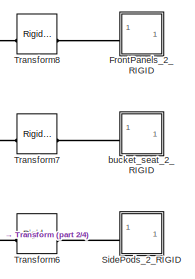
[diagram: root canvas - part 1/4, top center region]
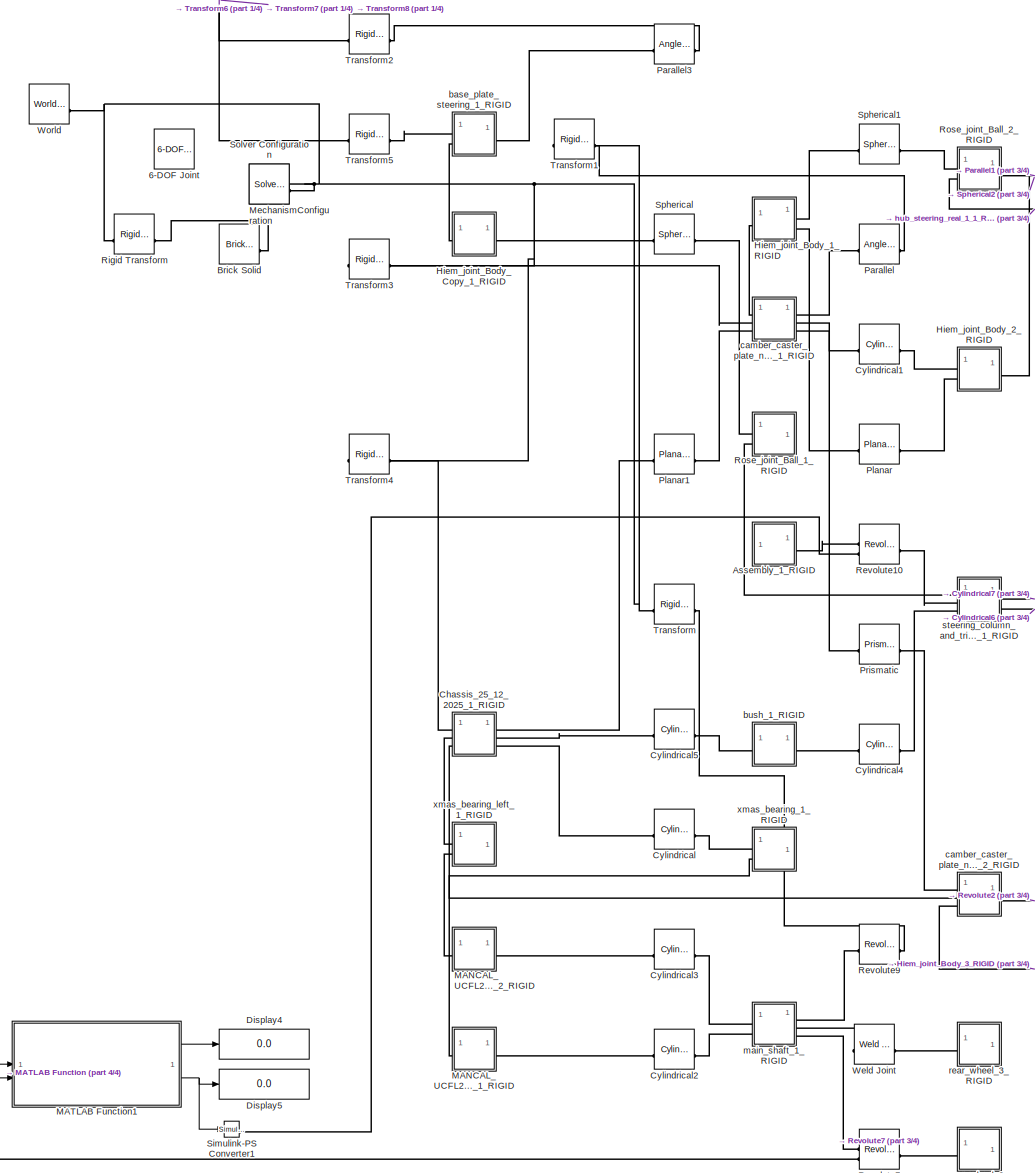
[diagram: root canvas - part 2/4, central region]
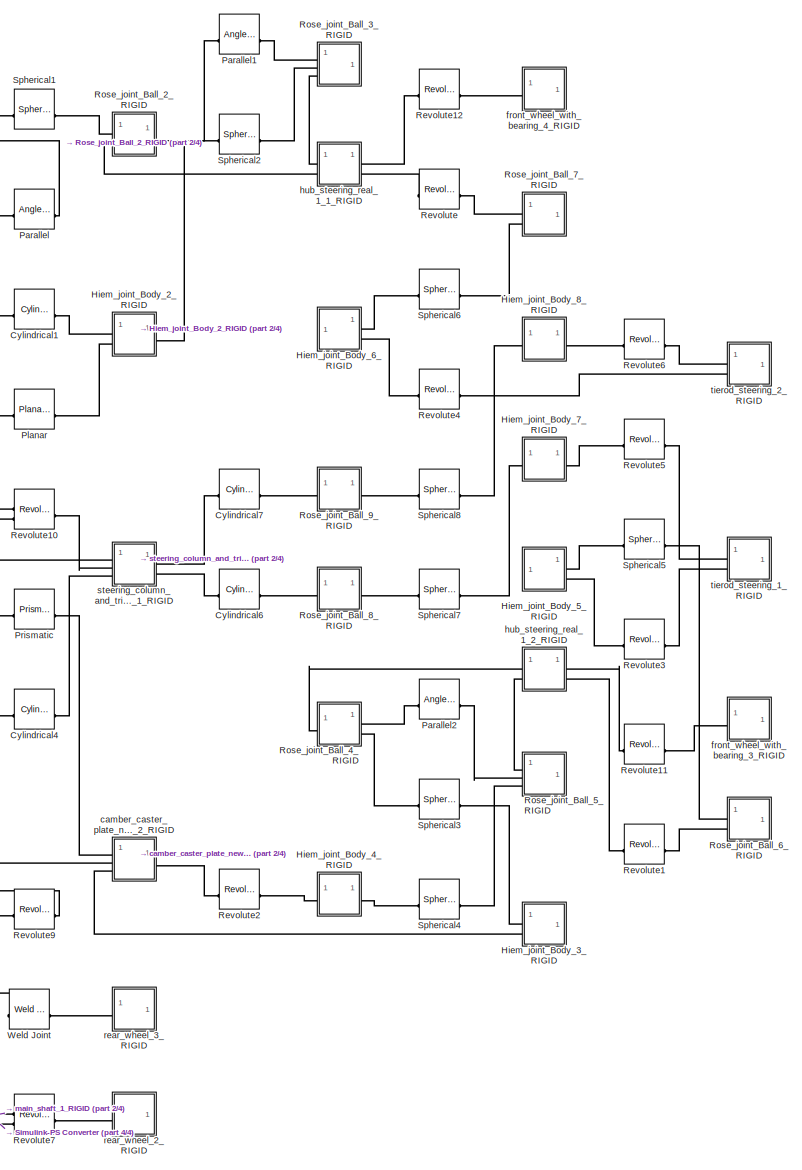
[diagram: root canvas - part 3/4, middle right region]
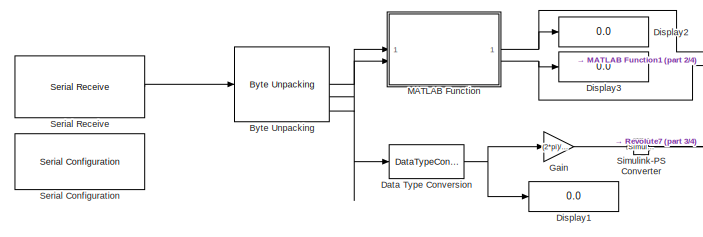
[diagram: root canvas - part 4/4, bottom left region]
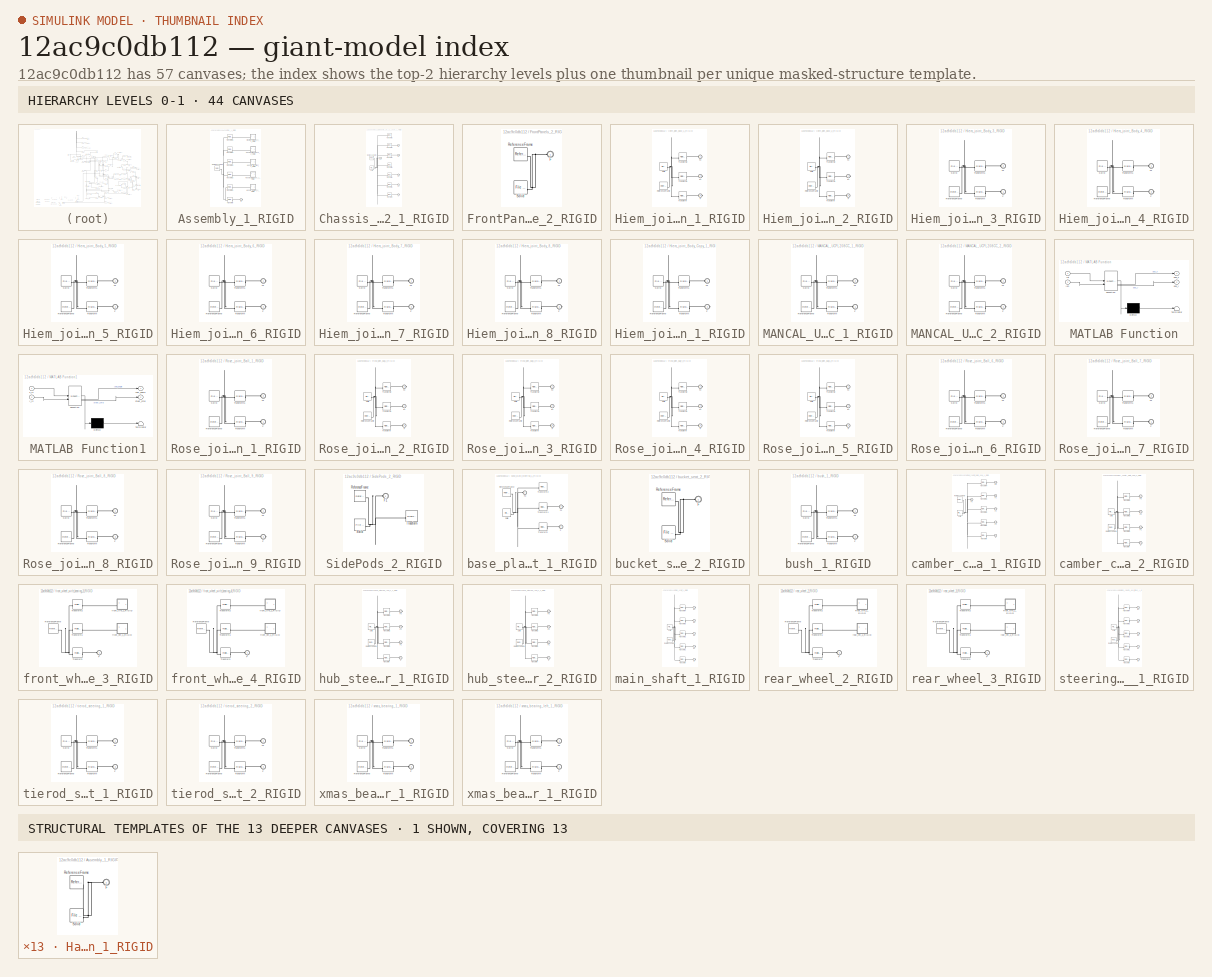
[diagram: thumbnail index - top-2 hierarchy levels (44 canvases) + 1 structural-template representatives of the remaining 13 canvases]
MODEL slx_12ac9c0db112
KIND model
CONFIG AbsTol = auto
CONFIG EnableMultiTasking = off
CONFIG FixedStep = auto
CONFIG MaxStep = auto
CONFIG MinStep = auto
CONFIG RelTol = 1e-3
CONFIG SampleTimeConstraint = Unconstrained
CONFIG SolverName = VariableStepAuto
CONFIG StartTime = 0.0
CONFIG StopTime = 10.0
WORKSPACE source: external: MATLAB File  (data not in archive)
BLOCK [Reference] 6-DOF Joint  REF=sm_lib/Joints/6-DOF Joint
  SourceBlock = sm_lib/Joints/6-DOF Joint
  SourceType = 6-DOF Joint
BLOCK [SubSystem] Assembly_1_RIGID
BLOCK [PMIOPort] Assembly_1_RIGID/F
  Side = Right
BLOCK [SubSystem] Assembly_1_RIGID/Handle_left_back_1_RIGID
BLOCK [PMIOPort] Assembly_1_RIGID/Handle_left_back_1_RIGID/F
  Side = Left
BLOCK [Reference] Assembly_1_RIGID/Handle_left_back_1_RIGID/ReferenceFrame  REF=sm_lib/Frames and
Transforms/Reference
Frame
  SourceBlock = sm_lib/Frames and\nTransforms/Reference\nFrame
  SourceType = Reference\nFrame
BLOCK [Reference] Assembly_1_RIGID/Handle_left_back_1_RIGID/Solid  REF=sm_lib/Body Elements/File Solid
  SourceBlock = sm_lib/Body Elements/File Solid
  SourceType = File Solid
BLOCK [SubSystem] Assembly_1_RIGID/Handle_left_front_1_RIGID
BLOCK [PMIOPort] Assembly_1_RIGID/Handle_left_front_1_RIGID/F
  Side = Left
BLOCK [Reference] Assembly_1_RIGID/Handle_left_front_1_RIGID/ReferenceFrame  REF=sm_lib/Frames and
Transforms/Reference
Frame
  SourceBlock = sm_lib/Frames and\nTransforms/Reference\nFrame
  SourceType = Reference\nFrame
BLOCK [Reference] Assembly_1_RIGID/Handle_left_front_1_RIGID/Solid  REF=sm_lib/Body Elements/File Solid
  SourceBlock = sm_lib/Body Elements/File Solid
  SourceType = File Solid
BLOCK [SubSystem] Assembly_1_RIGID/Handle_right_back_1_RIGID
BLOCK [PMIOPort] Assembly_1_RIGID/Handle_right_back_1_RIGID/F
  Side = Left
BLOCK [Reference] Assembly_1_RIGID/Handle_right_back_1_RIGID/ReferenceFrame  REF=sm_lib/Frames and
Transforms/Reference
Frame
  SourceBlock = sm_lib/Frames and\nTransforms/Reference\nFrame
  SourceType = Reference\nFrame
BLOCK [Reference] Assembly_1_RIGID/Handle_right_back_1_RIGID/Solid  REF=sm_lib/Body Elements/File Solid
  SourceBlock = sm_lib/Body Elements/File Solid
  SourceType = File Solid
BLOCK [SubSystem] Assembly_1_RIGID/Handle_right_front_1_RIGID
BLOCK [PMIOPort] Assembly_1_RIGID/Handle_right_front_1_RIGID/F
  Side = Left
BLOCK [Reference] Assembly_1_RIGID/Handle_right_front_1_RIGID/ReferenceFrame  REF=sm_lib/Frames and
Transforms/Reference
Frame
  SourceBlock = sm_lib/Frames and\nTransforms/Reference\nFrame
  SourceType = Reference\nFrame
BLOCK [Reference] Assembly_1_RIGID/Handle_right_front_1_RIGID/Solid  REF=sm_lib/Body Elements/File Solid
  SourceBlock = sm_lib/Body Elements/File Solid
  SourceType = File Solid
BLOCK [Reference] Assembly_1_RIGID/ReferenceFrame  REF=sm_lib/Frames and
Transforms/Reference
Frame
  SourceBlock = sm_lib/Frames and\nTransforms/Reference\nFrame
  SourceType = Reference\nFrame
BLOCK [SubSystem] Assembly_1_RIGID/Steering_Wheel_3_1_RIGID
BLOCK [PMIOPort] Assembly_1_RIGID/Steering_Wheel_3_1_RIGID/F
  Side = Left
BLOCK [Reference] Assembly_1_RIGID/Steering_Wheel_3_1_RIGID/ReferenceFrame  REF=sm_lib/Frames and
Transforms/Reference
Frame
  SourceBlock = sm_lib/Frames and\nTransforms/Reference\nFrame
  SourceType = Reference\nFrame
BLOCK [Reference] Assembly_1_RIGID/Steering_Wheel_3_1_RIGID/Solid  REF=sm_lib/Body Elements/File Solid
  SourceBlock = sm_lib/Body Elements/File Solid
  SourceType = File Solid
BLOCK [Reference] Assembly_1_RIGID/Transform  REF=sm_lib/Frames and
Transforms/Rigid
Transform
  SourceBlock = sm_lib/Frames and\nTransforms/Rigid\nTransform
  SourceType = Rigid\nTransform
BLOCK [Reference] Assembly_1_RIGID/Transform1  REF=sm_lib/Frames and
Transforms/Rigid
Transform
  SourceBlock = sm_lib/Frames and\nTransforms/Rigid\nTransform
  SourceType = Rigid\nTransform
BLOCK [Reference] Assembly_1_RIGID/Transform2  REF=sm_lib/Frames and
Transforms/Rigid
Transform
  SourceBlock = sm_lib/Frames and\nTransforms/Rigid\nTransform
  SourceType = Rigid\nTransform
BLOCK [Reference] Assembly_1_RIGID/Transform3  REF=sm_lib/Frames and
Transforms/Rigid
Transform
  SourceBlock = sm_lib/Frames and\nTransforms/Rigid\nTransform
  SourceType = Rigid\nTransform
BLOCK [Reference] Assembly_1_RIGID/Transform4  REF=sm_lib/Frames and
Transforms/Rigid
Transform
  SourceBlock = sm_lib/Frames and\nTransforms/Rigid\nTransform
  SourceType = Rigid\nTransform
BLOCK [Reference] Assembly_1_RIGID/Transform5  REF=sm_lib/Frames and
Transforms/Rigid
Transform
  SourceBlock = sm_lib/Frames and\nTransforms/Rigid\nTransform
  SourceType = Rigid\nTransform
BLOCK [Reference] Brick Solid  REF=sm_lib/Body Elements/Brick Solid
  SourceBlock = sm_lib/Body Elements/Brick Solid
  SourceType = Brick Solid
BLOCK [Reference] Byte Unpacking  REF=slrealtimeutilitieslib/Byte Unpacking
  SourceBlock = slrealtimeutilitieslib/Byte Unpacking
  SourceType = slreraltimebytepacking
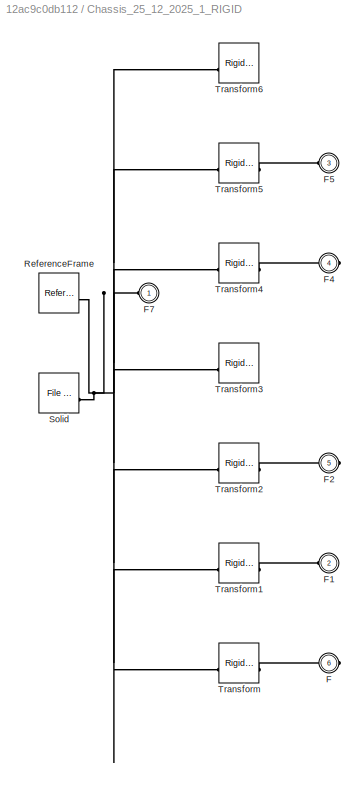
BLOCK [SubSystem] Chassis_25_12_2025_1_RIGID
BLOCK [PMIOPort] Chassis_25_12_2025_1_RIGID/F
  Port = 6
  Side = Right
BLOCK [PMIOPort] Chassis_25_12_2025_1_RIGID/F1
  Port = 2
  Side = Left
BLOCK [PMIOPort] Chassis_25_12_2025_1_RIGID/F2
  Port = 5
  Side = Right
BLOCK [PMIOPort] Chassis_25_12_2025_1_RIGID/F4
  Port = 4
  Side = Right
BLOCK [PMIOPort] Chassis_25_12_2025_1_RIGID/F5
  Port = 3
  Side = Left
BLOCK [PMIOPort] Chassis_25_12_2025_1_RIGID/F7
  Side = Left
BLOCK [Reference] Chassis_25_12_2025_1_RIGID/ReferenceFrame  REF=sm_lib/Frames and
Transforms/Reference
Frame
  SourceBlock = sm_lib/Frames and\nTransforms/Reference\nFrame
  SourceType = Reference\nFrame
BLOCK [Reference] Chassis_25_12_2025_1_RIGID/Solid  REF=sm_lib/Body Elements/File Solid
  SourceBlock = sm_lib/Body Elements/File Solid
  SourceType = File Solid
BLOCK [Reference] Chassis_25_12_2025_1_RIGID/Transform  REF=sm_lib/Frames and
Transforms/Rigid
Transform
  SourceBlock = sm_lib/Frames and\nTransforms/Rigid\nTransform
  SourceType = Rigid\nTransform
BLOCK [Reference] Chassis_25_12_2025_1_RIGID/Transform1  REF=sm_lib/Frames and
Transforms/Rigid
Transform
  SourceBlock = sm_lib/Frames and\nTransforms/Rigid\nTransform
  SourceType = Rigid\nTransform
BLOCK [Reference] Chassis_25_12_2025_1_RIGID/Transform2  REF=sm_lib/Frames and
Transforms/Rigid
Transform
  SourceBlock = sm_lib/Frames and\nTransforms/Rigid\nTransform
  SourceType = Rigid\nTransform
BLOCK [Reference] Chassis_25_12_2025_1_RIGID/Transform3  REF=sm_lib/Frames and
Transforms/Rigid
Transform
  SourceBlock = sm_lib/Frames and\nTransforms/Rigid\nTransform
  SourceType = Rigid\nTransform
BLOCK [Reference] Chassis_25_12_2025_1_RIGID/Transform4  REF=sm_lib/Frames and
Transforms/Rigid
Transform
  SourceBlock = sm_lib/Frames and\nTransforms/Rigid\nTransform
  SourceType = Rigid\nTransform
BLOCK [Reference] Chassis_25_12_2025_1_RIGID/Transform5  REF=sm_lib/Frames and
Transforms/Rigid
Transform
  SourceBlock = sm_lib/Frames and\nTransforms/Rigid\nTransform
  SourceType = Rigid\nTransform
BLOCK [Reference] Chassis_25_12_2025_1_RIGID/Transform6  REF=sm_lib/Frames and
Transforms/Rigid
Transform
  SourceBlock = sm_lib/Frames and\nTransforms/Rigid\nTransform
  SourceType = Rigid\nTransform
BLOCK [Reference] Cylindrical  REF=sm_lib/Joints/Cylindrical
Joint
  SourceBlock = sm_lib/Joints/Cylindrical\nJoint
  SourceType = Cylindrical\nJoint
BLOCK [Reference] Cylindrical1  REF=sm_lib/Joints/Cylindrical
Joint
  SourceBlock = sm_lib/Joints/Cylindrical\nJoint
  SourceType = Cylindrical\nJoint
BLOCK [Reference] Cylindrical2  REF=sm_lib/Joints/Cylindrical
Joint
  SourceBlock = sm_lib/Joints/Cylindrical\nJoint
  SourceType = Cylindrical\nJoint
BLOCK [Reference] Cylindrical3  REF=sm_lib/Joints/Cylindrical
Joint
  SourceBlock = sm_lib/Joints/Cylindrical\nJoint
  SourceType = Cylindrical\nJoint
BLOCK [Reference] Cylindrical4  REF=sm_lib/Joints/Cylindrical
Joint
  SourceBlock = sm_lib/Joints/Cylindrical\nJoint
  SourceType = Cylindrical\nJoint
BLOCK [Reference] Cylindrical5  REF=sm_lib/Joints/Cylindrical
Joint
  SourceBlock = sm_lib/Joints/Cylindrical\nJoint
  SourceType = Cylindrical\nJoint
BLOCK [Reference] Cylindrical6  REF=sm_lib/Joints/Cylindrical
Joint
  SourceBlock = sm_lib/Joints/Cylindrical\nJoint
  SourceType = Cylindrical\nJoint
BLOCK [Reference] Cylindrical7  REF=sm_lib/Joints/Cylindrical
Joint
  SourceBlock = sm_lib/Joints/Cylindrical\nJoint
  SourceType = Cylindrical\nJoint
BLOCK [DataTypeConversion] Data Type Conversion
  LockScale = on
  OutDataTypeStr = double
  RndMeth = Floor
  SaturateOnIntegerOverflow = off
BLOCK [Display] Display1
  Decimation = 1
BLOCK [Display] Display2
  Decimation = 1
BLOCK [Display] Display3
  Decimation = 1
BLOCK [Display] Display4
  Decimation = 1
BLOCK [Display] Display5
  Decimation = 1
BLOCK [SubSystem] FrontPanels_2_RIGID
BLOCK [PMIOPort] FrontPanels_2_RIGID/F
  Side = Left
BLOCK [Reference] FrontPanels_2_RIGID/ReferenceFrame  REF=sm_lib/Frames and
Transforms/Reference
Frame
  SourceBlock = sm_lib/Frames and\nTransforms/Reference\nFrame
  SourceType = Reference\nFrame
BLOCK [Reference] FrontPanels_2_RIGID/Solid  REF=sm_lib/Body Elements/File Solid
  SourceBlock = sm_lib/Body Elements/File Solid
  SourceType = File Solid
BLOCK [Gain] Gain
  Gain = (2*pi)/60
BLOCK [SubSystem] Hiem_joint_Body_1_RIGID
BLOCK [PMIOPort] Hiem_joint_Body_1_RIGID/F
  Port = 3
  Side = Right
BLOCK [PMIOPort] Hiem_joint_Body_1_RIGID/F1
  Port = 2
  Side = Right
BLOCK [PMIOPort] Hiem_joint_Body_1_RIGID/F2
  Side = Left
BLOCK [Reference] Hiem_joint_Body_1_RIGID/ReferenceFrame  REF=sm_lib/Frames and
Transforms/Reference
Frame
  SourceBlock = sm_lib/Frames and\nTransforms/Reference\nFrame
  SourceType = Reference\nFrame
BLOCK [Reference] Hiem_joint_Body_1_RIGID/Solid  REF=sm_lib/Body Elements/File Solid
  SourceBlock = sm_lib/Body Elements/File Solid
  SourceType = File Solid
BLOCK [Reference] Hiem_joint_Body_1_RIGID/Transform  REF=sm_lib/Frames and
Transforms/Rigid
Transform
  SourceBlock = sm_lib/Frames and\nTransforms/Rigid\nTransform
  SourceType = Rigid\nTransform
BLOCK [Reference] Hiem_joint_Body_1_RIGID/Transform1  REF=sm_lib/Frames and
Transforms/Rigid
Transform
  SourceBlock = sm_lib/Frames and\nTransforms/Rigid\nTransform
  SourceType = Rigid\nTransform
BLOCK [Reference] Hiem_joint_Body_1_RIGID/Transform2  REF=sm_lib/Frames and
Transforms/Rigid
Transform
  SourceBlock = sm_lib/Frames and\nTransforms/Rigid\nTransform
  SourceType = Rigid\nTransform
BLOCK [SubSystem] Hiem_joint_Body_2_RIGID
BLOCK [PMIOPort] Hiem_joint_Body_2_RIGID/F
  Port = 2
  Side = Left
BLOCK [PMIOPort] Hiem_joint_Body_2_RIGID/F1
  Port = 3
  Side = Right
BLOCK [PMIOPort] Hiem_joint_Body_2_RIGID/F2
  Side = Left
BLOCK [Reference] Hiem_joint_Body_2_RIGID/ReferenceFrame  REF=sm_lib/Frames and
Transforms/Reference
Frame
  SourceBlock = sm_lib/Frames and\nTransforms/Reference\nFrame
  SourceType = Reference\nFrame
BLOCK [Reference] Hiem_joint_Body_2_RIGID/Solid  REF=sm_lib/Body Elements/File Solid
  SourceBlock = sm_lib/Body Elements/File Solid
  SourceType = File Solid
BLOCK [Reference] Hiem_joint_Body_2_RIGID/Transform  REF=sm_lib/Frames and
Transforms/Rigid
Transform
  SourceBlock = sm_lib/Frames and\nTransforms/Rigid\nTransform
  SourceType = Rigid\nTransform
BLOCK [Reference] Hiem_joint_Body_2_RIGID/Transform1  REF=sm_lib/Frames and
Transforms/Rigid
Transform
  SourceBlock = sm_lib/Frames and\nTransforms/Rigid\nTransform
  SourceType = Rigid\nTransform
BLOCK [Reference] Hiem_joint_Body_2_RIGID/Transform2  REF=sm_lib/Frames and
Transforms/Rigid
Transform
  SourceBlock = sm_lib/Frames and\nTransforms/Rigid\nTransform
  SourceType = Rigid\nTransform
BLOCK [SubSystem] Hiem_joint_Body_3_RIGID
BLOCK [PMIOPort] Hiem_joint_Body_3_RIGID/F
  Side = Left
BLOCK [PMIOPort] Hiem_joint_Body_3_RIGID/F1
  Port = 2
  Side = Left
BLOCK [Reference] Hiem_joint_Body_3_RIGID/ReferenceFrame  REF=sm_lib/Frames and
Transforms/Reference
Frame
  SourceBlock = sm_lib/Frames and\nTransforms/Reference\nFrame
  SourceType = Reference\nFrame
BLOCK [Reference] Hiem_joint_Body_3_RIGID/Solid  REF=sm_lib/Body Elements/File Solid
  SourceBlock = sm_lib/Body Elements/File Solid
  SourceType = File Solid
BLOCK [Reference] Hiem_joint_Body_3_RIGID/Transform  REF=sm_lib/Frames and
Transforms/Rigid
Transform
  SourceBlock = sm_lib/Frames and\nTransforms/Rigid\nTransform
  SourceType = Rigid\nTransform
BLOCK [Reference] Hiem_joint_Body_3_RIGID/Transform1  REF=sm_lib/Frames and
Transforms/Rigid
Transform
  SourceBlock = sm_lib/Frames and\nTransforms/Rigid\nTransform
  SourceType = Rigid\nTransform
BLOCK [SubSystem] Hiem_joint_Body_4_RIGID
BLOCK [PMIOPort] Hiem_joint_Body_4_RIGID/F
  Port = 2
  Side = Right
BLOCK [PMIOPort] Hiem_joint_Body_4_RIGID/F1
  Side = Left
BLOCK [Reference] Hiem_joint_Body_4_RIGID/ReferenceFrame  REF=sm_lib/Frames and
Transforms/Reference
Frame
  SourceBlock = sm_lib/Frames and\nTransforms/Reference\nFrame
  SourceType = Reference\nFrame
BLOCK [Reference] Hiem_joint_Body_4_RIGID/Solid  REF=sm_lib/Body Elements/File Solid
  SourceBlock = sm_lib/Body Elements/File Solid
  SourceType = File Solid
BLOCK [Reference] Hiem_joint_Body_4_RIGID/Transform  REF=sm_lib/Frames and
Transforms/Rigid
Transform
  SourceBlock = sm_lib/Frames and\nTransforms/Rigid\nTransform
  SourceType = Rigid\nTransform
BLOCK [Reference] Hiem_joint_Body_4_RIGID/Transform1  REF=sm_lib/Frames and
Transforms/Rigid
Transform
  SourceBlock = sm_lib/Frames and\nTransforms/Rigid\nTransform
  SourceType = Rigid\nTransform
BLOCK [SubSystem] Hiem_joint_Body_5_RIGID
BLOCK [PMIOPort] Hiem_joint_Body_5_RIGID/F
  Port = 2
  Side = Right
BLOCK [PMIOPort] Hiem_joint_Body_5_RIGID/F1
  Side = Right
BLOCK [Reference] Hiem_joint_Body_5_RIGID/ReferenceFrame  REF=sm_lib/Frames and
Transforms/Reference
Frame
  SourceBlock = sm_lib/Frames and\nTransforms/Reference\nFrame
  SourceType = Reference\nFrame
BLOCK [Reference] Hiem_joint_Body_5_RIGID/Solid  REF=sm_lib/Body Elements/File Solid
  SourceBlock = sm_lib/Body Elements/File Solid
  SourceType = File Solid
BLOCK [Reference] Hiem_joint_Body_5_RIGID/Transform  REF=sm_lib/Frames and
Transforms/Rigid
Transform
  SourceBlock = sm_lib/Frames and\nTransforms/Rigid\nTransform
  SourceType = Rigid\nTransform
BLOCK [Reference] Hiem_joint_Body_5_RIGID/Transform1  REF=sm_lib/Frames and
Transforms/Rigid
Transform
  SourceBlock = sm_lib/Frames and\nTransforms/Rigid\nTransform
  SourceType = Rigid\nTransform
BLOCK [SubSystem] Hiem_joint_Body_6_RIGID
BLOCK [PMIOPort] Hiem_joint_Body_6_RIGID/F
  Port = 2
  Side = Right
BLOCK [PMIOPort] Hiem_joint_Body_6_RIGID/F1
  Side = Right
BLOCK [Reference] Hiem_joint_Body_6_RIGID/ReferenceFrame  REF=sm_lib/Frames and
Transforms/Reference
Frame
  SourceBlock = sm_lib/Frames and\nTransforms/Reference\nFrame
  SourceType = Reference\nFrame
BLOCK [Reference] Hiem_joint_Body_6_RIGID/Solid  REF=sm_lib/Body Elements/File Solid
  SourceBlock = sm_lib/Body Elements/File Solid
  SourceType = File Solid
BLOCK [Reference] Hiem_joint_Body_6_RIGID/Transform  REF=sm_lib/Frames and
Transforms/Rigid
Transform
  SourceBlock = sm_lib/Frames and\nTransforms/Rigid\nTransform
  SourceType = Rigid\nTransform
BLOCK [Reference] Hiem_joint_Body_6_RIGID/Transform1  REF=sm_lib/Frames and
Transforms/Rigid
Transform
  SourceBlock = sm_lib/Frames and\nTransforms/Rigid\nTransform
  SourceType = Rigid\nTransform
BLOCK [SubSystem] Hiem_joint_Body_7_RIGID
BLOCK [PMIOPort] Hiem_joint_Body_7_RIGID/F
  Port = 2
  Side = Right
BLOCK [PMIOPort] Hiem_joint_Body_7_RIGID/F1
  Side = Left
BLOCK [Reference] Hiem_joint_Body_7_RIGID/ReferenceFrame  REF=sm_lib/Frames and
Transforms/Reference
Frame
  SourceBlock = sm_lib/Frames and\nTransforms/Reference\nFrame
  SourceType = Reference\nFrame
BLOCK [Reference] Hiem_joint_Body_7_RIGID/Solid  REF=sm_lib/Body Elements/File Solid
  SourceBlock = sm_lib/Body Elements/File Solid
  SourceType = File Solid
BLOCK [Reference] Hiem_joint_Body_7_RIGID/Transform  REF=sm_lib/Frames and
Transforms/Rigid
Transform
  SourceBlock = sm_lib/Frames and\nTransforms/Rigid\nTransform
  SourceType = Rigid\nTransform
BLOCK [Reference] Hiem_joint_Body_7_RIGID/Transform1  REF=sm_lib/Frames and
Transforms/Rigid
Transform
  SourceBlock = sm_lib/Frames and\nTransforms/Rigid\nTransform
  SourceType = Rigid\nTransform
BLOCK [SubSystem] Hiem_joint_Body_8_RIGID
BLOCK [PMIOPort] Hiem_joint_Body_8_RIGID/F
  Port = 2
  Side = Right
BLOCK [PMIOPort] Hiem_joint_Body_8_RIGID/F1
  Side = Left
BLOCK [Reference] Hiem_joint_Body_8_RIGID/ReferenceFrame  REF=sm_lib/Frames and
Transforms/Reference
Frame
  SourceBlock = sm_lib/Frames and\nTransforms/Reference\nFrame
  SourceType = Reference\nFrame
BLOCK [Reference] Hiem_joint_Body_8_RIGID/Solid  REF=sm_lib/Body Elements/File Solid
  SourceBlock = sm_lib/Body Elements/File Solid
  SourceType = File Solid
BLOCK [Reference] Hiem_joint_Body_8_RIGID/Transform  REF=sm_lib/Frames and
Transforms/Rigid
Transform
  SourceBlock = sm_lib/Frames and\nTransforms/Rigid\nTransform
  SourceType = Rigid\nTransform
BLOCK [Reference] Hiem_joint_Body_8_RIGID/Transform1  REF=sm_lib/Frames and
Transforms/Rigid
Transform
  SourceBlock = sm_lib/Frames and\nTransforms/Rigid\nTransform
  SourceType = Rigid\nTransform
BLOCK [SubSystem] Hiem_joint_Body_Copy_1_RIGID
BLOCK [PMIOPort] Hiem_joint_Body_Copy_1_RIGID/F
  Port = 2
  Side = Right
BLOCK [PMIOPort] Hiem_joint_Body_Copy_1_RIGID/F1
  Side = Left
BLOCK [Reference] Hiem_joint_Body_Copy_1_RIGID/ReferenceFrame  REF=sm_lib/Frames and
Transforms/Reference
Frame
  SourceBlock = sm_lib/Frames and\nTransforms/Reference\nFrame
  SourceType = Reference\nFrame
BLOCK [Reference] Hiem_joint_Body_Copy_1_RIGID/Solid  REF=sm_lib/Body Elements/File Solid
  SourceBlock = sm_lib/Body Elements/File Solid
  SourceType = File Solid
BLOCK [Reference] Hiem_joint_Body_Copy_1_RIGID/Transform  REF=sm_lib/Frames and
Transforms/Rigid
Transform
  SourceBlock = sm_lib/Frames and\nTransforms/Rigid\nTransform
  SourceType = Rigid\nTransform
BLOCK [Reference] Hiem_joint_Body_Copy_1_RIGID/Transform1  REF=sm_lib/Frames and
Transforms/Rigid
Transform
  SourceBlock = sm_lib/Frames and\nTransforms/Rigid\nTransform
  SourceType = Rigid\nTransform
BLOCK [SubSystem] MANCAL_UCFL208CC_1_RIGID
BLOCK [PMIOPort] MANCAL_UCFL208CC_1_RIGID/F
  Side = Left
BLOCK [PMIOPort] MANCAL_UCFL208CC_1_RIGID/F1
  Port = 2
  Side = Right
BLOCK [Reference] MANCAL_UCFL208CC_1_RIGID/ReferenceFrame  REF=sm_lib/Frames and
Transforms/Reference
Frame
  SourceBlock = sm_lib/Frames and\nTransforms/Reference\nFrame
  SourceType = Reference\nFrame
BLOCK [Reference] MANCAL_UCFL208CC_1_RIGID/Solid  REF=sm_lib/Body Elements/File Solid
  SourceBlock = sm_lib/Body Elements/File Solid
  SourceType = File Solid
BLOCK [Reference] MANCAL_UCFL208CC_1_RIGID/Transform  REF=sm_lib/Frames and
Transforms/Rigid
Transform
  SourceBlock = sm_lib/Frames and\nTransforms/Rigid\nTransform
  SourceType = Rigid\nTransform
BLOCK [Reference] MANCAL_UCFL208CC_1_RIGID/Transform1  REF=sm_lib/Frames and
Transforms/Rigid
Transform
  SourceBlock = sm_lib/Frames and\nTransforms/Rigid\nTransform
  SourceType = Rigid\nTransform
BLOCK [SubSystem] MANCAL_UCFL208CC_2_RIGID
BLOCK [PMIOPort] MANCAL_UCFL208CC_2_RIGID/F
  Port = 2
  Side = Right
BLOCK [PMIOPort] MANCAL_UCFL208CC_2_RIGID/F1
  Side = Left
BLOCK [Reference] MANCAL_UCFL208CC_2_RIGID/ReferenceFrame  REF=sm_lib/Frames and
Transforms/Reference
Frame
  SourceBlock = sm_lib/Frames and\nTransforms/Reference\nFrame
  SourceType = Reference\nFrame
BLOCK [Reference] MANCAL_UCFL208CC_2_RIGID/Solid  REF=sm_lib/Body Elements/File Solid
  SourceBlock = sm_lib/Body Elements/File Solid
  SourceType = File Solid
BLOCK [Reference] MANCAL_UCFL208CC_2_RIGID/Transform  REF=sm_lib/Frames and
Transforms/Rigid
Transform
  SourceBlock = sm_lib/Frames and\nTransforms/Rigid\nTransform
  SourceType = Rigid\nTransform
BLOCK [Reference] MANCAL_UCFL208CC_2_RIGID/Transform1  REF=sm_lib/Frames and
Transforms/Rigid
Transform
  SourceBlock = sm_lib/Frames and\nTransforms/Rigid\nTransform
  SourceType = Rigid\nTransform
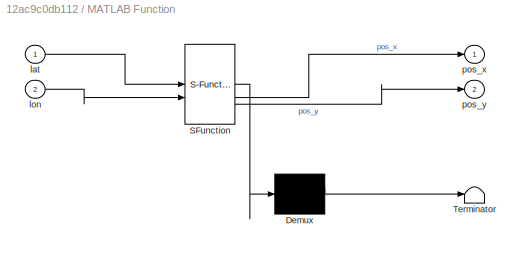
BLOCK [SubSystem] MATLAB Function
  ErrorFcn = Stateflow.Translate.translate
  PermitHierarchicalResolution = ExplicitOnly
  SFBlockType = MATLAB Function
  TreatAsAtomicUnit = on
BLOCK [Demux] MATLAB Function/ Demux 
  Outputs = 1
BLOCK [S-Function] MATLAB Function/ SFunction 
  EnableBusSupport = off
  FunctionName = sf_sfun
  PortCounts = [2 3]
  SFcnIsStateOwnerBlock = off
  SFunctionDeploymentMode = off
  Tag = Stateflow S-Function 2
BLOCK [Terminator] MATLAB Function/ Terminator 
BLOCK [Inport] MATLAB Function/lat
BLOCK [Inport] MATLAB Function/lon
  Port = 2
BLOCK [Outport] MATLAB Function/pos_x
BLOCK [Outport] MATLAB Function/pos_y
  Port = 2
BLOCK [SubSystem] MATLAB Function1
  ErrorFcn = Stateflow.Translate.translate
  PermitHierarchicalResolution = ExplicitOnly
  SFBlockType = MATLAB Function
  TreatAsAtomicUnit = on
BLOCK [Demux] MATLAB Function1/ Demux 
  Outputs = 1
BLOCK [S-Function] MATLAB Function1/ SFunction 
  EnableBusSupport = off
  FunctionName = sf_sfun
  PortCounts = [2 3]
  SFcnIsStateOwnerBlock = off
  SFunctionDeploymentMode = off
  Tag = Stateflow S-Function 1
BLOCK [Terminator] MATLAB Function1/ Terminator 
BLOCK [Outport] MATLAB Function1/steer_cmd
  Port = 2
BLOCK [Inport] MATLAB Function1/x_in
BLOCK [Inport] MATLAB Function1/y_in
  Port = 2
BLOCK [Outport] MATLAB Function1/yaw_angle
BLOCK [Reference] MechanismConfiguration  REF=sm_lib/Utilities/Mechanism
Configuration
  SourceBlock = sm_lib/Utilities/Mechanism\nConfiguration
  SourceType = Mechanism\nConfiguration
BLOCK [Reference] Parallel  REF=sm_lib/Constraints/Angle
Constraint
  Commented = on
  SourceBlock = sm_lib/Constraints/Angle\nConstraint
  SourceType = Angle\nConstraint
BLOCK [Reference] Parallel1  REF=sm_lib/Constraints/Angle
Constraint
  Commented = on
  SourceBlock = sm_lib/Constraints/Angle\nConstraint
  SourceType = Angle\nConstraint
BLOCK [Reference] Parallel2  REF=sm_lib/Constraints/Angle
Constraint
  Commented = on
  SourceBlock = sm_lib/Constraints/Angle\nConstraint
  SourceType = Angle\nConstraint
BLOCK [Reference] Parallel3  REF=sm_lib/Constraints/Angle
Constraint
  Commented = on
  SourceBlock = sm_lib/Constraints/Angle\nConstraint
  SourceType = Angle\nConstraint
BLOCK [Reference] Planar  REF=sm_lib/Joints/Planar Joint
  SourceBlock = sm_lib/Joints/Planar Joint
  SourceType = Planar Joint
BLOCK [Reference] Planar1  REF=sm_lib/Joints/Planar Joint
  Commented = on
  SourceBlock = sm_lib/Joints/Planar Joint
  SourceType = Planar Joint
BLOCK [Reference] Prismatic  REF=sm_lib/Joints/Prismatic
Joint
  Commented = on
  SourceBlock = sm_lib/Joints/Prismatic\nJoint
  SourceType = Prismatic\nJoint
BLOCK [Reference] Revolute  REF=sm_lib/Joints/Revolute Joint
  SourceBlock = sm_lib/Joints/Revolute Joint
  SourceType = Revolute Joint
BLOCK [Reference] Revolute1  REF=sm_lib/Joints/Revolute Joint
  SourceBlock = sm_lib/Joints/Revolute Joint
  SourceType = Revolute Joint
BLOCK [Reference] Revolute10  REF=sm_lib/Joints/Revolute Joint
  SourceBlock = sm_lib/Joints/Revolute Joint
  SourceType = Revolute Joint
BLOCK [Reference] Revolute11  REF=sm_lib/Joints/Revolute Joint
  SourceBlock = sm_lib/Joints/Revolute Joint
  SourceType = Revolute Joint
BLOCK [Reference] Revolute12  REF=sm_lib/Joints/Revolute Joint
  SourceBlock = sm_lib/Joints/Revolute Joint
  SourceType = Revolute Joint
BLOCK [Reference] Revolute2  REF=sm_lib/Joints/Revolute Joint
  SourceBlock = sm_lib/Joints/Revolute Joint
  SourceType = Revolute Joint
BLOCK [Reference] Revolute3  REF=sm_lib/Joints/Revolute Joint
  SourceBlock = sm_lib/Joints/Revolute Joint
  SourceType = Revolute Joint
BLOCK [Reference] Revolute4  REF=sm_lib/Joints/Revolute Joint
  SourceBlock = sm_lib/Joints/Revolute Joint
  SourceType = Revolute Joint
BLOCK [Reference] Revolute5  REF=sm_lib/Joints/Revolute Joint
  SourceBlock = sm_lib/Joints/Revolute Joint
  SourceType = Revolute Joint
BLOCK [Reference] Revolute6  REF=sm_lib/Joints/Revolute Joint
  SourceBlock = sm_lib/Joints/Revolute Joint
  SourceType = Revolute Joint
BLOCK [Reference] Revolute7  REF=sm_lib/Joints/Revolute Joint
  SourceBlock = sm_lib/Joints/Revolute Joint
  SourceType = Revolute Joint
BLOCK [Reference] Revolute9  REF=sm_lib/Joints/Revolute Joint
  SourceBlock = sm_lib/Joints/Revolute Joint
  SourceType = Revolute Joint
BLOCK [Reference] Rigid Transform  REF=sm_lib/Frames and
Transforms/Rigid
Transform
  SourceBlock = sm_lib/Frames and\nTransforms/Rigid\nTransform
  SourceType = Rigid\nTransform
BLOCK [SubSystem] Rose_joint_Ball_1_RIGID
BLOCK [PMIOPort] Rose_joint_Ball_1_RIGID/F
  Side = Left
BLOCK [PMIOPort] Rose_joint_Ball_1_RIGID/F1
  Port = 2
  Side = Left
BLOCK [Reference] Rose_joint_Ball_1_RIGID/ReferenceFrame  REF=sm_lib/Frames and
Transforms/Reference
Frame
  SourceBlock = sm_lib/Frames and\nTransforms/Reference\nFrame
  SourceType = Reference\nFrame
BLOCK [Reference] Rose_joint_Ball_1_RIGID/Solid  REF=sm_lib/Body Elements/File Solid
  SourceBlock = sm_lib/Body Elements/File Solid
  SourceType = File Solid
BLOCK [Reference] Rose_joint_Ball_1_RIGID/Transform  REF=sm_lib/Frames and
Transforms/Rigid
Transform
  SourceBlock = sm_lib/Frames and\nTransforms/Rigid\nTransform
  SourceType = Rigid\nTransform
BLOCK [Reference] Rose_joint_Ball_1_RIGID/Transform1  REF=sm_lib/Frames and
Transforms/Rigid
Transform
  SourceBlock = sm_lib/Frames and\nTransforms/Rigid\nTransform
  SourceType = Rigid\nTransform
BLOCK [SubSystem] Rose_joint_Ball_2_RIGID
BLOCK [PMIOPort] Rose_joint_Ball_2_RIGID/F
  Port = 2
  Side = Left
BLOCK [PMIOPort] Rose_joint_Ball_2_RIGID/F1
  Side = Left
BLOCK [PMIOPort] Rose_joint_Ball_2_RIGID/F2
  Port = 3
  Side = Right
BLOCK [Reference] Rose_joint_Ball_2_RIGID/ReferenceFrame  REF=sm_lib/Frames and
Transforms/Reference
Frame
  SourceBlock = sm_lib/Frames and\nTransforms/Reference\nFrame
  SourceType = Reference\nFrame
BLOCK [Reference] Rose_joint_Ball_2_RIGID/Solid  REF=sm_lib/Body Elements/File Solid
  SourceBlock = sm_lib/Body Elements/File Solid
  SourceType = File Solid
BLOCK [Reference] Rose_joint_Ball_2_RIGID/Transform  REF=sm_lib/Frames and
Transforms/Rigid
Transform
  SourceBlock = sm_lib/Frames and\nTransforms/Rigid\nTransform
  SourceType = Rigid\nTransform
BLOCK [Reference] Rose_joint_Ball_2_RIGID/Transform1  REF=sm_lib/Frames and
Transforms/Rigid
Transform
  SourceBlock = sm_lib/Frames and\nTransforms/Rigid\nTransform
  SourceType = Rigid\nTransform
BLOCK [Reference] Rose_joint_Ball_2_RIGID/Transform2  REF=sm_lib/Frames and
Transforms/Rigid
Transform
  SourceBlock = sm_lib/Frames and\nTransforms/Rigid\nTransform
  SourceType = Rigid\nTransform
BLOCK [SubSystem] Rose_joint_Ball_3_RIGID
BLOCK [PMIOPort] Rose_joint_Ball_3_RIGID/F
  Port = 3
  Side = Left
BLOCK [PMIOPort] Rose_joint_Ball_3_RIGID/F1
  Port = 2
  Side = Left
BLOCK [PMIOPort] Rose_joint_Ball_3_RIGID/F2
  Side = Left
BLOCK [Reference] Rose_joint_Ball_3_RIGID/ReferenceFrame  REF=sm_lib/Frames and
Transforms/Reference
Frame
  SourceBlock = sm_lib/Frames and\nTransforms/Reference\nFrame
  SourceType = Reference\nFrame
BLOCK [Reference] Rose_joint_Ball_3_RIGID/Solid  REF=sm_lib/Body Elements/File Solid
  SourceBlock = sm_lib/Body Elements/File Solid
  SourceType = File Solid
BLOCK [Reference] Rose_joint_Ball_3_RIGID/Transform  REF=sm_lib/Frames and
Transforms/Rigid
Transform
  SourceBlock = sm_lib/Frames and\nTransforms/Rigid\nTransform
  SourceType = Rigid\nTransform
BLOCK [Reference] Rose_joint_Ball_3_RIGID/Transform1  REF=sm_lib/Frames and
Transforms/Rigid
Transform
  SourceBlock = sm_lib/Frames and\nTransforms/Rigid\nTransform
  SourceType = Rigid\nTransform
BLOCK [Reference] Rose_joint_Ball_3_RIGID/Transform2  REF=sm_lib/Frames and
Transforms/Rigid
Transform
  SourceBlock = sm_lib/Frames and\nTransforms/Rigid\nTransform
  SourceType = Rigid\nTransform
BLOCK [SubSystem] Rose_joint_Ball_4_RIGID
BLOCK [PMIOPort] Rose_joint_Ball_4_RIGID/F
  Side = Left
BLOCK [PMIOPort] Rose_joint_Ball_4_RIGID/F1
  Port = 3
  Side = Right
BLOCK [PMIOPort] Rose_joint_Ball_4_RIGID/F2
  Port = 2
  Side = Right
BLOCK [Reference] Rose_joint_Ball_4_RIGID/ReferenceFrame  REF=sm_lib/Frames and
Transforms/Reference
Frame
  SourceBlock = sm_lib/Frames and\nTransforms/Reference\nFrame
  SourceType = Reference\nFrame
BLOCK [Reference] Rose_joint_Ball_4_RIGID/Solid  REF=sm_lib/Body Elements/File Solid
  SourceBlock = sm_lib/Body Elements/File Solid
  SourceType = File Solid
BLOCK [Reference] Rose_joint_Ball_4_RIGID/Transform  REF=sm_lib/Frames and
Transforms/Rigid
Transform
  SourceBlock = sm_lib/Frames and\nTransforms/Rigid\nTransform
  SourceType = Rigid\nTransform
BLOCK [Reference] Rose_joint_Ball_4_RIGID/Transform1  REF=sm_lib/Frames and
Transforms/Rigid
Transform
  SourceBlock = sm_lib/Frames and\nTransforms/Rigid\nTransform
  SourceType = Rigid\nTransform
BLOCK [Reference] Rose_joint_Ball_4_RIGID/Transform2  REF=sm_lib/Frames and
Transforms/Rigid
Transform
  SourceBlock = sm_lib/Frames and\nTransforms/Rigid\nTransform
  SourceType = Rigid\nTransform
BLOCK [SubSystem] Rose_joint_Ball_5_RIGID
BLOCK [PMIOPort] Rose_joint_Ball_5_RIGID/F
  Side = Left
BLOCK [PMIOPort] Rose_joint_Ball_5_RIGID/F1
  Port = 3
  Side = Left
BLOCK [PMIOPort] Rose_joint_Ball_5_RIGID/F2
  Port = 2
  Side = Left
BLOCK [Reference] Rose_joint_Ball_5_RIGID/ReferenceFrame  REF=sm_lib/Frames and
Transforms/Reference
Frame
  SourceBlock = sm_lib/Frames and\nTransforms/Reference\nFrame
  SourceType = Reference\nFrame
BLOCK [Reference] Rose_joint_Ball_5_RIGID/Solid  REF=sm_lib/Body Elements/File Solid
  SourceBlock = sm_lib/Body Elements/File Solid
  SourceType = File Solid
BLOCK [Reference] Rose_joint_Ball_5_RIGID/Transform  REF=sm_lib/Frames and
Transforms/Rigid
Transform
  SourceBlock = sm_lib/Frames and\nTransforms/Rigid\nTransform
  SourceType = Rigid\nTransform
BLOCK [Reference] Rose_joint_Ball_5_RIGID/Transform1  REF=sm_lib/Frames and
Transforms/Rigid
Transform
  SourceBlock = sm_lib/Frames and\nTransforms/Rigid\nTransform
  SourceType = Rigid\nTransform
BLOCK [Reference] Rose_joint_Ball_5_RIGID/Transform2  REF=sm_lib/Frames and
Transforms/Rigid
Transform
  SourceBlock = sm_lib/Frames and\nTransforms/Rigid\nTransform
  SourceType = Rigid\nTransform
BLOCK [SubSystem] Rose_joint_Ball_6_RIGID
BLOCK [PMIOPort] Rose_joint_Ball_6_RIGID/F
  Port = 2
  Side = Left
BLOCK [PMIOPort] Rose_joint_Ball_6_RIGID/F1
  Side = Left
BLOCK [Reference] Rose_joint_Ball_6_RIGID/ReferenceFrame  REF=sm_lib/Frames and
Transforms/Reference
Frame
  SourceBlock = sm_lib/Frames and\nTransforms/Reference\nFrame
  SourceType = Reference\nFrame
BLOCK [Reference] Rose_joint_Ball_6_RIGID/Solid  REF=sm_lib/Body Elements/File Solid
  SourceBlock = sm_lib/Body Elements/File Solid
  SourceType = File Solid
BLOCK [Reference] Rose_joint_Ball_6_RIGID/Transform  REF=sm_lib/Frames and
Transforms/Rigid
Transform
  SourceBlock = sm_lib/Frames and\nTransforms/Rigid\nTransform
  SourceType = Rigid\nTransform
BLOCK [Reference] Rose_joint_Ball_6_RIGID/Transform1  REF=sm_lib/Frames and
Transforms/Rigid
Transform
  SourceBlock = sm_lib/Frames and\nTransforms/Rigid\nTransform
  SourceType = Rigid\nTransform
BLOCK [SubSystem] Rose_joint_Ball_7_RIGID
BLOCK [PMIOPort] Rose_joint_Ball_7_RIGID/F
  Side = Left
BLOCK [PMIOPort] Rose_joint_Ball_7_RIGID/F1
  Port = 2
  Side = Left
BLOCK [Reference] Rose_joint_Ball_7_RIGID/ReferenceFrame  REF=sm_lib/Frames and
Transforms/Reference
Frame
  SourceBlock = sm_lib/Frames and\nTransforms/Reference\nFrame
  SourceType = Reference\nFrame
BLOCK [Reference] Rose_joint_Ball_7_RIGID/Solid  REF=sm_lib/Body Elements/File Solid
  SourceBlock = sm_lib/Body Elements/File Solid
  SourceType = File Solid
BLOCK [Reference] Rose_joint_Ball_7_RIGID/Transform  REF=sm_lib/Frames and
Transforms/Rigid
Transform
  SourceBlock = sm_lib/Frames and\nTransforms/Rigid\nTransform
  SourceType = Rigid\nTransform
BLOCK [Reference] Rose_joint_Ball_7_RIGID/Transform1  REF=sm_lib/Frames and
Transforms/Rigid
Transform
  SourceBlock = sm_lib/Frames and\nTransforms/Rigid\nTransform
  SourceType = Rigid\nTransform
BLOCK [SubSystem] Rose_joint_Ball_8_RIGID
BLOCK [PMIOPort] Rose_joint_Ball_8_RIGID/F
  Port = 2
  Side = Right
BLOCK [PMIOPort] Rose_joint_Ball_8_RIGID/F1
  Side = Left
BLOCK [Reference] Rose_joint_Ball_8_RIGID/ReferenceFrame  REF=sm_lib/Frames and
Transforms/Reference
Frame
  SourceBlock = sm_lib/Frames and\nTransforms/Reference\nFrame
  SourceType = Reference\nFrame
BLOCK [Reference] Rose_joint_Ball_8_RIGID/Solid  REF=sm_lib/Body Elements/File Solid
  SourceBlock = sm_lib/Body Elements/File Solid
  SourceType = File Solid
BLOCK [Reference] Rose_joint_Ball_8_RIGID/Transform  REF=sm_lib/Frames and
Transforms/Rigid
Transform
  SourceBlock = sm_lib/Frames and\nTransforms/Rigid\nTransform
  SourceType = Rigid\nTransform
BLOCK [Reference] Rose_joint_Ball_8_RIGID/Transform1  REF=sm_lib/Frames and
Transforms/Rigid
Transform
  SourceBlock = sm_lib/Frames and\nTransforms/Rigid\nTransform
  SourceType = Rigid\nTransform
BLOCK [SubSystem] Rose_joint_Ball_9_RIGID
BLOCK [PMIOPort] Rose_joint_Ball_9_RIGID/F
  Port = 2
  Side = Right
BLOCK [PMIOPort] Rose_joint_Ball_9_RIGID/F1
  Side = Left
BLOCK [Reference] Rose_joint_Ball_9_RIGID/ReferenceFrame  REF=sm_lib/Frames and
Transforms/Reference
Frame
  SourceBlock = sm_lib/Frames and\nTransforms/Reference\nFrame
  SourceType = Reference\nFrame
BLOCK [Reference] Rose_joint_Ball_9_RIGID/Solid  REF=sm_lib/Body Elements/File Solid
  SourceBlock = sm_lib/Body Elements/File Solid
  SourceType = File Solid
BLOCK [Reference] Rose_joint_Ball_9_RIGID/Transform  REF=sm_lib/Frames and
Transforms/Rigid
Transform
  SourceBlock = sm_lib/Frames and\nTransforms/Rigid\nTransform
  SourceType = Rigid\nTransform
BLOCK [Reference] Rose_joint_Ball_9_RIGID/Transform1  REF=sm_lib/Frames and
Transforms/Rigid
Transform
  SourceBlock = sm_lib/Frames and\nTransforms/Rigid\nTransform
  SourceType = Rigid\nTransform
BLOCK [Reference] Serial Configuration  REF=instrumentseriallib/Serial Configuration
  LibrarySourceBlock = instrumentlib/Serial Configuration
  Priority = -200000
  SourceBlock = instrumentseriallib/Serial Configuration
  SourceType = system.SerialConfiguration
BLOCK [Reference] Serial Receive  REF=instrumentseriallib/Serial Receive
  LibrarySourceBlock = instrumentlib/Serial Receive
  Priority = 1
  SourceBlock = instrumentseriallib/Serial Receive
  SourceType = system.SerialReceive
BLOCK [SubSystem] SidePods_2_RIGID
BLOCK [PMIOPort] SidePods_2_RIGID/F1
  Side = Left
BLOCK [Reference] SidePods_2_RIGID/ReferenceFrame  REF=sm_lib/Frames and
Transforms/Reference
Frame
  SourceBlock = sm_lib/Frames and\nTransforms/Reference\nFrame
  SourceType = Reference\nFrame
BLOCK [Reference] SidePods_2_RIGID/Solid  REF=sm_lib/Body Elements/File Solid
  SourceBlock = sm_lib/Body Elements/File Solid
  SourceType = File Solid
BLOCK [Reference] SidePods_2_RIGID/Transform  REF=sm_lib/Frames and
Transforms/Rigid
Transform
  SourceBlock = sm_lib/Frames and\nTransforms/Rigid\nTransform
  SourceType = Rigid\nTransform
BLOCK [Reference] Simulink-PS Converter  REF=nesl_utility/Simulink-PS
Converter
  SourceBlock = nesl_utility/Simulink-PS\nConverter
  SourceType = Simulink-PS\nConverter
BLOCK [Reference] Simulink-PS Converter1  REF=nesl_utility/Simulink-PS
Converter
  SourceBlock = nesl_utility/Simulink-PS\nConverter
  SourceType = Simulink-PS\nConverter
BLOCK [Reference] Solver Configuration  REF=nesl_utility/Solver
Configuration
  SourceBlock = nesl_utility/Solver\nConfiguration
  SourceType = Solver\nConfiguration
BLOCK [Reference] Spherical  REF=sm_lib/Joints/Spherical
Joint
  SourceBlock = sm_lib/Joints/Spherical\nJoint
  SourceType = Spherical\nJoint
BLOCK [Reference] Spherical1  REF=sm_lib/Joints/Spherical
Joint
  SourceBlock = sm_lib/Joints/Spherical\nJoint
  SourceType = Spherical\nJoint
BLOCK [Reference] Spherical2  REF=sm_lib/Joints/Spherical
Joint
  SourceBlock = sm_lib/Joints/Spherical\nJoint
  SourceType = Spherical\nJoint
BLOCK [Reference] Spherical3  REF=sm_lib/Joints/Spherical
Joint
  SourceBlock = sm_lib/Joints/Spherical\nJoint
  SourceType = Spherical\nJoint
BLOCK [Reference] Spherical4  REF=sm_lib/Joints/Spherical
Joint
  SourceBlock = sm_lib/Joints/Spherical\nJoint
  SourceType = Spherical\nJoint
BLOCK [Reference] Spherical5  REF=sm_lib/Joints/Spherical
Joint
  SourceBlock = sm_lib/Joints/Spherical\nJoint
  SourceType = Spherical\nJoint
BLOCK [Reference] Spherical6  REF=sm_lib/Joints/Spherical
Joint
  SourceBlock = sm_lib/Joints/Spherical\nJoint
  SourceType = Spherical\nJoint
BLOCK [Reference] Spherical7  REF=sm_lib/Joints/Spherical
Joint
  SourceBlock = sm_lib/Joints/Spherical\nJoint
  SourceType = Spherical\nJoint
BLOCK [Reference] Spherical8  REF=sm_lib/Joints/Spherical
Joint
  SourceBlock = sm_lib/Joints/Spherical\nJoint
  SourceType = Spherical\nJoint
BLOCK [Reference] Transform  REF=sm_lib/Frames and
Transforms/Rigid
Transform
  SourceBlock = sm_lib/Frames and\nTransforms/Rigid\nTransform
  SourceType = Rigid\nTransform
BLOCK [Reference] Transform1  REF=sm_lib/Frames and
Transforms/Rigid
Transform
  SourceBlock = sm_lib/Frames and\nTransforms/Rigid\nTransform
  SourceType = Rigid\nTransform
BLOCK [Reference] Transform2  REF=sm_lib/Frames and
Transforms/Rigid
Transform
  SourceBlock = sm_lib/Frames and\nTransforms/Rigid\nTransform
  SourceType = Rigid\nTransform
BLOCK [Reference] Transform3  REF=sm_lib/Frames and
Transforms/Rigid
Transform
  SourceBlock = sm_lib/Frames and\nTransforms/Rigid\nTransform
  SourceType = Rigid\nTransform
BLOCK [Reference] Transform4  REF=sm_lib/Frames and
Transforms/Rigid
Transform
  SourceBlock = sm_lib/Frames and\nTransforms/Rigid\nTransform
  SourceType = Rigid\nTransform
BLOCK [Reference] Transform5  REF=sm_lib/Frames and
Transforms/Rigid
Transform
  SourceBlock = sm_lib/Frames and\nTransforms/Rigid\nTransform
  SourceType = Rigid\nTransform
BLOCK [Reference] Transform6  REF=sm_lib/Frames and
Transforms/Rigid
Transform
  SourceBlock = sm_lib/Frames and\nTransforms/Rigid\nTransform
  SourceType = Rigid\nTransform
BLOCK [Reference] Transform7  REF=sm_lib/Frames and
Transforms/Rigid
Transform
  SourceBlock = sm_lib/Frames and\nTransforms/Rigid\nTransform
  SourceType = Rigid\nTransform
BLOCK [Reference] Transform8  REF=sm_lib/Frames and
Transforms/Rigid
Transform
  SourceBlock = sm_lib/Frames and\nTransforms/Rigid\nTransform
  SourceType = Rigid\nTransform
BLOCK [Reference] Weld Joint  REF=sm_lib/Joints/Weld Joint
  SourceBlock = sm_lib/Joints/Weld Joint
  SourceType = Weld Joint
BLOCK [Reference] World  REF=sm_lib/Frames and
Transforms/World Frame
  SourceBlock = sm_lib/Frames and\nTransforms/World Frame
  SourceType = World Frame
BLOCK [SubSystem] base_plate_steering_1_RIGID
BLOCK [PMIOPort] base_plate_steering_1_RIGID/F
  Port = 2
  Side = Left
BLOCK [PMIOPort] base_plate_steering_1_RIGID/F1
  Port = 3
  Side = Right
BLOCK [PMIOPort] base_plate_steering_1_RIGID/F3
  Side = Left
BLOCK [Reference] base_plate_steering_1_RIGID/ReferenceFrame  REF=sm_lib/Frames and
Transforms/Reference
Frame
  SourceBlock = sm_lib/Frames and\nTransforms/Reference\nFrame
  SourceType = Reference\nFrame
BLOCK [Reference] base_plate_steering_1_RIGID/Solid  REF=sm_lib/Body Elements/File Solid
  SourceBlock = sm_lib/Body Elements/File Solid
  SourceType = File Solid
BLOCK [Reference] base_plate_steering_1_RIGID/Transform  REF=sm_lib/Frames and
Transforms/Rigid
Transform
  SourceBlock = sm_lib/Frames and\nTransforms/Rigid\nTransform
  SourceType = Rigid\nTransform
BLOCK [Reference] base_plate_steering_1_RIGID/Transform1  REF=sm_lib/Frames and
Transforms/Rigid
Transform
  SourceBlock = sm_lib/Frames and\nTransforms/Rigid\nTransform
  SourceType = Rigid\nTransform
BLOCK [Reference] base_plate_steering_1_RIGID/Transform2  REF=sm_lib/Frames and
Transforms/Rigid
Transform
  SourceBlock = sm_lib/Frames and\nTransforms/Rigid\nTransform
  SourceType = Rigid\nTransform
BLOCK [SubSystem] bucket_seat_2_RIGID
BLOCK [PMIOPort] bucket_seat_2_RIGID/F
  Side = Left
BLOCK [Reference] bucket_seat_2_RIGID/ReferenceFrame  REF=sm_lib/Frames and
Transforms/Reference
Frame
  SourceBlock = sm_lib/Frames and\nTransforms/Reference\nFrame
  SourceType = Reference\nFrame
BLOCK [Reference] bucket_seat_2_RIGID/Solid  REF=sm_lib/Body Elements/File Solid
  SourceBlock = sm_lib/Body Elements/File Solid
  SourceType = File Solid
BLOCK [SubSystem] bush_1_RIGID
BLOCK [PMIOPort] bush_1_RIGID/F
  Port = 2
  Side = Right
BLOCK [PMIOPort] bush_1_RIGID/F1
  Side = Left
BLOCK [Reference] bush_1_RIGID/ReferenceFrame  REF=sm_lib/Frames and
Transforms/Reference
Frame
  SourceBlock = sm_lib/Frames and\nTransforms/Reference\nFrame
  SourceType = Reference\nFrame
BLOCK [Reference] bush_1_RIGID/Solid  REF=sm_lib/Body Elements/File Solid
  SourceBlock = sm_lib/Body Elements/File Solid
  SourceType = File Solid
BLOCK [Reference] bush_1_RIGID/Transform  REF=sm_lib/Frames and
Transforms/Rigid
Transform
  SourceBlock = sm_lib/Frames and\nTransforms/Rigid\nTransform
  SourceType = Rigid\nTransform
BLOCK [Reference] bush_1_RIGID/Transform1  REF=sm_lib/Frames and
Transforms/Rigid
Transform
  SourceBlock = sm_lib/Frames and\nTransforms/Rigid\nTransform
  SourceType = Rigid\nTransform
BLOCK [SubSystem] camber_caster_plate_new_1_RIGID
BLOCK [PMIOPort] camber_caster_plate_new_1_RIGID/F
  Side = Left
BLOCK [PMIOPort] camber_caster_plate_new_1_RIGID/F1
  Port = 5
  Side = Right
BLOCK [PMIOPort] camber_caster_plate_new_1_RIGID/F2
  Port = 4
  Side = Right
BLOCK [PMIOPort] camber_caster_plate_new_1_RIGID/F3
  Port = 3
  Side = Left
BLOCK [PMIOPort] camber_caster_plate_new_1_RIGID/F4
  Port = 6
  Side = Right
BLOCK [PMIOPort] camber_caster_plate_new_1_RIGID/F5
  Port = 2
  Side = Left
BLOCK [Reference] camber_caster_plate_new_1_RIGID/ReferenceFrame  REF=sm_lib/Frames and
Transforms/Reference
Frame
  SourceBlock = sm_lib/Frames and\nTransforms/Reference\nFrame
  SourceType = Reference\nFrame
BLOCK [Reference] camber_caster_plate_new_1_RIGID/Solid  REF=sm_lib/Body Elements/File Solid
  SourceBlock = sm_lib/Body Elements/File Solid
  SourceType = File Solid
BLOCK [Reference] camber_caster_plate_new_1_RIGID/Transform  REF=sm_lib/Frames and
Transforms/Rigid
Transform
  SourceBlock = sm_lib/Frames and\nTransforms/Rigid\nTransform
  SourceType = Rigid\nTransform
BLOCK [Reference] camber_caster_plate_new_1_RIGID/Transform1  REF=sm_lib/Frames and
Transforms/Rigid
Transform
  SourceBlock = sm_lib/Frames and\nTransforms/Rigid\nTransform
  SourceType = Rigid\nTransform
BLOCK [Reference] camber_caster_plate_new_1_RIGID/Transform2  REF=sm_lib/Frames and
Transforms/Rigid
Transform
  SourceBlock = sm_lib/Frames and\nTransforms/Rigid\nTransform
  SourceType = Rigid\nTransform
BLOCK [Reference] camber_caster_plate_new_1_RIGID/Transform3  REF=sm_lib/Frames and
Transforms/Rigid
Transform
  SourceBlock = sm_lib/Frames and\nTransforms/Rigid\nTransform
  SourceType = Rigid\nTransform
BLOCK [Reference] camber_caster_plate_new_1_RIGID/Transform4  REF=sm_lib/Frames and
Transforms/Rigid
Transform
  SourceBlock = sm_lib/Frames and\nTransforms/Rigid\nTransform
  SourceType = Rigid\nTransform
BLOCK [SubSystem] camber_caster_plate_new_2_RIGID
BLOCK [PMIOPort] camber_caster_plate_new_2_RIGID/F
  Port = 3
  Side = Left
BLOCK [PMIOPort] camber_caster_plate_new_2_RIGID/F1
  Port = 4
  Side = Right
BLOCK [PMIOPort] camber_caster_plate_new_2_RIGID/F2
  Port = 2
  Side = Left
BLOCK [PMIOPort] camber_caster_plate_new_2_RIGID/F3
  Side = Left
BLOCK [Reference] camber_caster_plate_new_2_RIGID/ReferenceFrame  REF=sm_lib/Frames and
Transforms/Reference
Frame
  SourceBlock = sm_lib/Frames and\nTransforms/Reference\nFrame
  SourceType = Reference\nFrame
BLOCK [Reference] camber_caster_plate_new_2_RIGID/Solid  REF=sm_lib/Body Elements/File Solid
  SourceBlock = sm_lib/Body Elements/File Solid
  SourceType = File Solid
BLOCK [Reference] camber_caster_plate_new_2_RIGID/Transform  REF=sm_lib/Frames and
Transforms/Rigid
Transform
  SourceBlock = sm_lib/Frames and\nTransforms/Rigid\nTransform
  SourceType = Rigid\nTransform
BLOCK [Reference] camber_caster_plate_new_2_RIGID/Transform1  REF=sm_lib/Frames and
Transforms/Rigid
Transform
  SourceBlock = sm_lib/Frames and\nTransforms/Rigid\nTransform
  SourceType = Rigid\nTransform
BLOCK [Reference] camber_caster_plate_new_2_RIGID/Transform2  REF=sm_lib/Frames and
Transforms/Rigid
Transform
  SourceBlock = sm_lib/Frames and\nTransforms/Rigid\nTransform
  SourceType = Rigid\nTransform
BLOCK [Reference] camber_caster_plate_new_2_RIGID/Transform3  REF=sm_lib/Frames and
Transforms/Rigid
Transform
  SourceBlock = sm_lib/Frames and\nTransforms/Rigid\nTransform
  SourceType = Rigid\nTransform
BLOCK [SubSystem] front_wheel_with_bearing_3_RIGID
BLOCK [PMIOPort] front_wheel_with_bearing_3_RIGID/F
  Side = Left
BLOCK [Reference] front_wheel_with_bearing_3_RIGID/ReferenceFrame  REF=sm_lib/Frames and
Transforms/Reference
Frame
  SourceBlock = sm_lib/Frames and\nTransforms/Reference\nFrame
  SourceType = Reference\nFrame
BLOCK [Reference] front_wheel_with_bearing_3_RIGID/Transform  REF=sm_lib/Frames and
Transforms/Rigid
Transform
  SourceBlock = sm_lib/Frames and\nTransforms/Rigid\nTransform
  SourceType = Rigid\nTransform
BLOCK [Reference] front_wheel_with_bearing_3_RIGID/Transform1  REF=sm_lib/Frames and
Transforms/Rigid
Transform
  SourceBlock = sm_lib/Frames and\nTransforms/Rigid\nTransform
  SourceType = Rigid\nTransform
BLOCK [Reference] front_wheel_with_bearing_3_RIGID/Transform2  REF=sm_lib/Frames and
Transforms/Rigid
Transform
  SourceBlock = sm_lib/Frames and\nTransforms/Rigid\nTransform
  SourceType = Rigid\nTransform
BLOCK [SubSystem] front_wheel_with_bearing_3_RIGID/front_rim_1_RIGID
BLOCK [PMIOPort] front_wheel_with_bearing_3_RIGID/front_rim_1_RIGID/F
  Side = Left
BLOCK [Reference] front_wheel_with_bearing_3_RIGID/front_rim_1_RIGID/ReferenceFrame  REF=sm_lib/Frames and
Transforms/Reference
Frame
  SourceBlock = sm_lib/Frames and\nTransforms/Reference\nFrame
  SourceType = Reference\nFrame
BLOCK [Reference] front_wheel_with_bearing_3_RIGID/front_rim_1_RIGID/Solid  REF=sm_lib/Body Elements/File Solid
  SourceBlock = sm_lib/Body Elements/File Solid
  SourceType = File Solid
BLOCK [SubSystem] front_wheel_with_bearing_3_RIGID/front_tyre_1_RIGID
BLOCK [PMIOPort] front_wheel_with_bearing_3_RIGID/front_tyre_1_RIGID/F
  Side = Left
BLOCK [Reference] front_wheel_with_bearing_3_RIGID/front_tyre_1_RIGID/ReferenceFrame  REF=sm_lib/Frames and
Transforms/Reference
Frame
  SourceBlock = sm_lib/Frames and\nTransforms/Reference\nFrame
  SourceType = Reference\nFrame
BLOCK [Reference] front_wheel_with_bearing_3_RIGID/front_tyre_1_RIGID/Solid  REF=sm_lib/Body Elements/File Solid
  SourceBlock = sm_lib/Body Elements/File Solid
  SourceType = File Solid
BLOCK [SubSystem] front_wheel_with_bearing_4_RIGID
BLOCK [PMIOPort] front_wheel_with_bearing_4_RIGID/F
  Side = Left
BLOCK [Reference] front_wheel_with_bearing_4_RIGID/ReferenceFrame  REF=sm_lib/Frames and
Transforms/Reference
Frame
  SourceBlock = sm_lib/Frames and\nTransforms/Reference\nFrame
  SourceType = Reference\nFrame
BLOCK [Reference] front_wheel_with_bearing_4_RIGID/Transform  REF=sm_lib/Frames and
Transforms/Rigid
Transform
  SourceBlock = sm_lib/Frames and\nTransforms/Rigid\nTransform
  SourceType = Rigid\nTransform
BLOCK [Reference] front_wheel_with_bearing_4_RIGID/Transform1  REF=sm_lib/Frames and
Transforms/Rigid
Transform
  SourceBlock = sm_lib/Frames and\nTransforms/Rigid\nTransform
  SourceType = Rigid\nTransform
BLOCK [Reference] front_wheel_with_bearing_4_RIGID/Transform2  REF=sm_lib/Frames and
Transforms/Rigid
Transform
  SourceBlock = sm_lib/Frames and\nTransforms/Rigid\nTransform
  SourceType = Rigid\nTransform
BLOCK [SubSystem] front_wheel_with_bearing_4_RIGID/front_rim_1_RIGID
BLOCK [PMIOPort] front_wheel_with_bearing_4_RIGID/front_rim_1_RIGID/F
  Side = Left
BLOCK [Reference] front_wheel_with_bearing_4_RIGID/front_rim_1_RIGID/ReferenceFrame  REF=sm_lib/Frames and
Transforms/Reference
Frame
  SourceBlock = sm_lib/Frames and\nTransforms/Reference\nFrame
  SourceType = Reference\nFrame
BLOCK [Reference] front_wheel_with_bearing_4_RIGID/front_rim_1_RIGID/Solid  REF=sm_lib/Body Elements/File Solid
  SourceBlock = sm_lib/Body Elements/File Solid
  SourceType = File Solid
BLOCK [SubSystem] front_wheel_with_bearing_4_RIGID/front_tyre_1_RIGID
BLOCK [PMIOPort] front_wheel_with_bearing_4_RIGID/front_tyre_1_RIGID/F
  Side = Left
BLOCK [Reference] front_wheel_with_bearing_4_RIGID/front_tyre_1_RIGID/ReferenceFrame  REF=sm_lib/Frames and
Transforms/Reference
Frame
  SourceBlock = sm_lib/Frames and\nTransforms/Reference\nFrame
  SourceType = Reference\nFrame
BLOCK [Reference] front_wheel_with_bearing_4_RIGID/front_tyre_1_RIGID/Solid  REF=sm_lib/Body Elements/File Solid
  SourceBlock = sm_lib/Body Elements/File Solid
  SourceType = File Solid
BLOCK [SubSystem] hub_steering_real_1_1_RIGID
BLOCK [PMIOPort] hub_steering_real_1_1_RIGID/F
  Port = 2
  Side = Left
BLOCK [PMIOPort] hub_steering_real_1_1_RIGID/F1
  Side = Left
BLOCK [PMIOPort] hub_steering_real_1_1_RIGID/F2
  Port = 4
  Side = Right
BLOCK [PMIOPort] hub_steering_real_1_1_RIGID/F3
  Port = 3
  Side = Right
BLOCK [Reference] hub_steering_real_1_1_RIGID/ReferenceFrame  REF=sm_lib/Frames and
Transforms/Reference
Frame
  SourceBlock = sm_lib/Frames and\nTransforms/Reference\nFrame
  SourceType = Reference\nFrame
BLOCK [Reference] hub_steering_real_1_1_RIGID/Solid  REF=sm_lib/Body Elements/File Solid
  SourceBlock = sm_lib/Body Elements/File Solid
  SourceType = File Solid
BLOCK [Reference] hub_steering_real_1_1_RIGID/Transform  REF=sm_lib/Frames and
Transforms/Rigid
Transform
  SourceBlock = sm_lib/Frames and\nTransforms/Rigid\nTransform
  SourceType = Rigid\nTransform
BLOCK [Reference] hub_steering_real_1_1_RIGID/Transform1  REF=sm_lib/Frames and
Transforms/Rigid
Transform
  SourceBlock = sm_lib/Frames and\nTransforms/Rigid\nTransform
  SourceType = Rigid\nTransform
BLOCK [Reference] hub_steering_real_1_1_RIGID/Transform2  REF=sm_lib/Frames and
Transforms/Rigid
Transform
  SourceBlock = sm_lib/Frames and\nTransforms/Rigid\nTransform
  SourceType = Rigid\nTransform
BLOCK [Reference] hub_steering_real_1_1_RIGID/Transform3  REF=sm_lib/Frames and
Transforms/Rigid
Transform
  SourceBlock = sm_lib/Frames and\nTransforms/Rigid\nTransform
  SourceType = Rigid\nTransform
BLOCK [SubSystem] hub_steering_real_1_2_RIGID
BLOCK [PMIOPort] hub_steering_real_1_2_RIGID/F
  Side = Left
BLOCK [PMIOPort] hub_steering_real_1_2_RIGID/F1
  Port = 2
  Side = Left
BLOCK [PMIOPort] hub_steering_real_1_2_RIGID/F2
  Port = 4
  Side = Right
BLOCK [PMIOPort] hub_steering_real_1_2_RIGID/F3
  Port = 3
  Side = Right
BLOCK [Reference] hub_steering_real_1_2_RIGID/ReferenceFrame  REF=sm_lib/Frames and
Transforms/Reference
Frame
  SourceBlock = sm_lib/Frames and\nTransforms/Reference\nFrame
  SourceType = Reference\nFrame
BLOCK [Reference] hub_steering_real_1_2_RIGID/Solid  REF=sm_lib/Body Elements/File Solid
  SourceBlock = sm_lib/Body Elements/File Solid
  SourceType = File Solid
BLOCK [Reference] hub_steering_real_1_2_RIGID/Transform  REF=sm_lib/Frames and
Transforms/Rigid
Transform
  SourceBlock = sm_lib/Frames and\nTransforms/Rigid\nTransform
  SourceType = Rigid\nTransform
BLOCK [Reference] hub_steering_real_1_2_RIGID/Transform1  REF=sm_lib/Frames and
Transforms/Rigid
Transform
  SourceBlock = sm_lib/Frames and\nTransforms/Rigid\nTransform
  SourceType = Rigid\nTransform
BLOCK [Reference] hub_steering_real_1_2_RIGID/Transform2  REF=sm_lib/Frames and
Transforms/Rigid
Transform
  SourceBlock = sm_lib/Frames and\nTransforms/Rigid\nTransform
  SourceType = Rigid\nTransform
BLOCK [Reference] hub_steering_real_1_2_RIGID/Transform3  REF=sm_lib/Frames and
Transforms/Rigid
Transform
  SourceBlock = sm_lib/Frames and\nTransforms/Rigid\nTransform
  SourceType = Rigid\nTransform
BLOCK [SubSystem] main_shaft_1_RIGID
BLOCK [PMIOPort] main_shaft_1_RIGID/F
  Port = 5
  Side = Right
BLOCK [PMIOPort] main_shaft_1_RIGID/F1
  Port = 4
  Side = Right
BLOCK [PMIOPort] main_shaft_1_RIGID/F2
  Port = 2
  Side = Left
BLOCK [PMIOPort] main_shaft_1_RIGID/F3
  Side = Left
BLOCK [PMIOPort] main_shaft_1_RIGID/F4
  Port = 3
  Side = Right
BLOCK [Reference] main_shaft_1_RIGID/ReferenceFrame  REF=sm_lib/Frames and
Transforms/Reference
Frame
  SourceBlock = sm_lib/Frames and\nTransforms/Reference\nFrame
  SourceType = Reference\nFrame
BLOCK [Reference] main_shaft_1_RIGID/Solid  REF=sm_lib/Body Elements/File Solid
  SourceBlock = sm_lib/Body Elements/File Solid
  SourceType = File Solid
BLOCK [Reference] main_shaft_1_RIGID/Transform  REF=sm_lib/Frames and
Transforms/Rigid
Transform
  SourceBlock = sm_lib/Frames and\nTransforms/Rigid\nTransform
  SourceType = Rigid\nTransform
BLOCK [Reference] main_shaft_1_RIGID/Transform1  REF=sm_lib/Frames and
Transforms/Rigid
Transform
  SourceBlock = sm_lib/Frames and\nTransforms/Rigid\nTransform
  SourceType = Rigid\nTransform
BLOCK [Reference] main_shaft_1_RIGID/Transform2  REF=sm_lib/Frames and
Transforms/Rigid
Transform
  SourceBlock = sm_lib/Frames and\nTransforms/Rigid\nTransform
  SourceType = Rigid\nTransform
BLOCK [Reference] main_shaft_1_RIGID/Transform3  REF=sm_lib/Frames and
Transforms/Rigid
Transform
  SourceBlock = sm_lib/Frames and\nTransforms/Rigid\nTransform
  SourceType = Rigid\nTransform
BLOCK [Reference] main_shaft_1_RIGID/Transform4  REF=sm_lib/Frames and
Transforms/Rigid
Transform
  SourceBlock = sm_lib/Frames and\nTransforms/Rigid\nTransform
  SourceType = Rigid\nTransform
BLOCK [SubSystem] rear_wheel_2_RIGID
BLOCK [PMIOPort] rear_wheel_2_RIGID/F
  Side = Left
BLOCK [SubSystem] rear_wheel_2_RIGID/Rear_Tyre_1_RIGID
BLOCK [PMIOPort] rear_wheel_2_RIGID/Rear_Tyre_1_RIGID/F
  Side = Left
BLOCK [Reference] rear_wheel_2_RIGID/Rear_Tyre_1_RIGID/ReferenceFrame  REF=sm_lib/Frames and
Transforms/Reference
Frame
  SourceBlock = sm_lib/Frames and\nTransforms/Reference\nFrame
  SourceType = Reference\nFrame
BLOCK [Reference] rear_wheel_2_RIGID/Rear_Tyre_1_RIGID/Solid  REF=sm_lib/Body Elements/File Solid
  SourceBlock = sm_lib/Body Elements/File Solid
  SourceType = File Solid
BLOCK [Reference] rear_wheel_2_RIGID/ReferenceFrame  REF=sm_lib/Frames and
Transforms/Reference
Frame
  SourceBlock = sm_lib/Frames and\nTransforms/Reference\nFrame
  SourceType = Reference\nFrame
BLOCK [Reference] rear_wheel_2_RIGID/Transform  REF=sm_lib/Frames and
Transforms/Rigid
Transform
  SourceBlock = sm_lib/Frames and\nTransforms/Rigid\nTransform
  SourceType = Rigid\nTransform
BLOCK [Reference] rear_wheel_2_RIGID/Transform1  REF=sm_lib/Frames and
Transforms/Rigid
Transform
  SourceBlock = sm_lib/Frames and\nTransforms/Rigid\nTransform
  SourceType = Rigid\nTransform
BLOCK [Reference] rear_wheel_2_RIGID/Transform2  REF=sm_lib/Frames and
Transforms/Rigid
Transform
  SourceBlock = sm_lib/Frames and\nTransforms/Rigid\nTransform
  SourceType = Rigid\nTransform
BLOCK [SubSystem] rear_wheel_2_RIGID/rear_rim_1_RIGID
BLOCK [PMIOPort] rear_wheel_2_RIGID/rear_rim_1_RIGID/F
  Side = Left
BLOCK [Reference] rear_wheel_2_RIGID/rear_rim_1_RIGID/ReferenceFrame  REF=sm_lib/Frames and
Transforms/Reference
Frame
  SourceBlock = sm_lib/Frames and\nTransforms/Reference\nFrame
  SourceType = Reference\nFrame
BLOCK [Reference] rear_wheel_2_RIGID/rear_rim_1_RIGID/Solid  REF=sm_lib/Body Elements/File Solid
  SourceBlock = sm_lib/Body Elements/File Solid
  SourceType = File Solid
BLOCK [SubSystem] rear_wheel_3_RIGID
BLOCK [PMIOPort] rear_wheel_3_RIGID/F
  Side = Left
BLOCK [SubSystem] rear_wheel_3_RIGID/Rear_Tyre_1_RIGID
BLOCK [PMIOPort] rear_wheel_3_RIGID/Rear_Tyre_1_RIGID/F
  Side = Left
BLOCK [Reference] rear_wheel_3_RIGID/Rear_Tyre_1_RIGID/ReferenceFrame  REF=sm_lib/Frames and
Transforms/Reference
Frame
  SourceBlock = sm_lib/Frames and\nTransforms/Reference\nFrame
  SourceType = Reference\nFrame
BLOCK [Reference] rear_wheel_3_RIGID/Rear_Tyre_1_RIGID/Solid  REF=sm_lib/Body Elements/File Solid
  SourceBlock = sm_lib/Body Elements/File Solid
  SourceType = File Solid
BLOCK [Reference] rear_wheel_3_RIGID/ReferenceFrame  REF=sm_lib/Frames and
Transforms/Reference
Frame
  SourceBlock = sm_lib/Frames and\nTransforms/Reference\nFrame
  SourceType = Reference\nFrame
BLOCK [Reference] rear_wheel_3_RIGID/Transform  REF=sm_lib/Frames and
Transforms/Rigid
Transform
  SourceBlock = sm_lib/Frames and\nTransforms/Rigid\nTransform
  SourceType = Rigid\nTransform
BLOCK [Reference] rear_wheel_3_RIGID/Transform1  REF=sm_lib/Frames and
Transforms/Rigid
Transform
  SourceBlock = sm_lib/Frames and\nTransforms/Rigid\nTransform
  SourceType = Rigid\nTransform
BLOCK [Reference] rear_wheel_3_RIGID/Transform2  REF=sm_lib/Frames and
Transforms/Rigid
Transform
  SourceBlock = sm_lib/Frames and\nTransforms/Rigid\nTransform
  SourceType = Rigid\nTransform
BLOCK [SubSystem] rear_wheel_3_RIGID/rear_rim_1_RIGID
BLOCK [PMIOPort] rear_wheel_3_RIGID/rear_rim_1_RIGID/F
  Side = Left
BLOCK [Reference] rear_wheel_3_RIGID/rear_rim_1_RIGID/ReferenceFrame  REF=sm_lib/Frames and
Transforms/Reference
Frame
  SourceBlock = sm_lib/Frames and\nTransforms/Reference\nFrame
  SourceType = Reference\nFrame
BLOCK [Reference] rear_wheel_3_RIGID/rear_rim_1_RIGID/Solid  REF=sm_lib/Body Elements/File Solid
  SourceBlock = sm_lib/Body Elements/File Solid
  SourceType = File Solid
BLOCK [SubSystem] steering_column_and_tripod_1_RIGID
BLOCK [PMIOPort] steering_column_and_tripod_1_RIGID/F
  Port = 3
  Side = Left
BLOCK [PMIOPort] steering_column_and_tripod_1_RIGID/F1
  Side = Left
BLOCK [PMIOPort] steering_column_and_tripod_1_RIGID/F2
  Port = 5
  Side = Right
BLOCK [PMIOPort] steering_column_and_tripod_1_RIGID/F3
  Port = 4
  Side = Right
BLOCK [PMIOPort] steering_column_and_tripod_1_RIGID/F4
  Port = 2
  Side = Left
BLOCK [Reference] steering_column_and_tripod_1_RIGID/ReferenceFrame  REF=sm_lib/Frames and
Transforms/Reference
Frame
  SourceBlock = sm_lib/Frames and\nTransforms/Reference\nFrame
  SourceType = Reference\nFrame
BLOCK [Reference] steering_column_and_tripod_1_RIGID/Solid  REF=sm_lib/Body Elements/File Solid
  SourceBlock = sm_lib/Body Elements/File Solid
  SourceType = File Solid
BLOCK [Reference] steering_column_and_tripod_1_RIGID/Transform  REF=sm_lib/Frames and
Transforms/Rigid
Transform
  SourceBlock = sm_lib/Frames and\nTransforms/Rigid\nTransform
  SourceType = Rigid\nTransform
BLOCK [Reference] steering_column_and_tripod_1_RIGID/Transform1  REF=sm_lib/Frames and
Transforms/Rigid
Transform
  SourceBlock = sm_lib/Frames and\nTransforms/Rigid\nTransform
  SourceType = Rigid\nTransform
BLOCK [Reference] steering_column_and_tripod_1_RIGID/Transform2  REF=sm_lib/Frames and
Transforms/Rigid
Transform
  SourceBlock = sm_lib/Frames and\nTransforms/Rigid\nTransform
  SourceType = Rigid\nTransform
BLOCK [Reference] steering_column_and_tripod_1_RIGID/Transform3  REF=sm_lib/Frames and
Transforms/Rigid
Transform
  SourceBlock = sm_lib/Frames and\nTransforms/Rigid\nTransform
  SourceType = Rigid\nTransform
BLOCK [Reference] steering_column_and_tripod_1_RIGID/Transform4  REF=sm_lib/Frames and
Transforms/Rigid
Transform
  SourceBlock = sm_lib/Frames and\nTransforms/Rigid\nTransform
  SourceType = Rigid\nTransform
BLOCK [SubSystem] tierod_steering_1_RIGID
BLOCK [PMIOPort] tierod_steering_1_RIGID/F
  Port = 2
  Side = Left
BLOCK [PMIOPort] tierod_steering_1_RIGID/F1
  Side = Left
BLOCK [Reference] tierod_steering_1_RIGID/ReferenceFrame  REF=sm_lib/Frames and
Transforms/Reference
Frame
  SourceBlock = sm_lib/Frames and\nTransforms/Reference\nFrame
  SourceType = Reference\nFrame
BLOCK [Reference] tierod_steering_1_RIGID/Solid  REF=sm_lib/Body Elements/File Solid
  SourceBlock = sm_lib/Body Elements/File Solid
  SourceType = File Solid
BLOCK [Reference] tierod_steering_1_RIGID/Transform  REF=sm_lib/Frames and
Transforms/Rigid
Transform
  SourceBlock = sm_lib/Frames and\nTransforms/Rigid\nTransform
  SourceType = Rigid\nTransform
BLOCK [Reference] tierod_steering_1_RIGID/Transform1  REF=sm_lib/Frames and
Transforms/Rigid
Transform
  SourceBlock = sm_lib/Frames and\nTransforms/Rigid\nTransform
  SourceType = Rigid\nTransform
BLOCK [SubSystem] tierod_steering_2_RIGID
BLOCK [PMIOPort] tierod_steering_2_RIGID/F
  Port = 2
  Side = Left
BLOCK [PMIOPort] tierod_steering_2_RIGID/F1
  Side = Left
BLOCK [Reference] tierod_steering_2_RIGID/ReferenceFrame  REF=sm_lib/Frames and
Transforms/Reference
Frame
  SourceBlock = sm_lib/Frames and\nTransforms/Reference\nFrame
  SourceType = Reference\nFrame
BLOCK [Reference] tierod_steering_2_RIGID/Solid  REF=sm_lib/Body Elements/File Solid
  SourceBlock = sm_lib/Body Elements/File Solid
  SourceType = File Solid
BLOCK [Reference] tierod_steering_2_RIGID/Transform  REF=sm_lib/Frames and
Transforms/Rigid
Transform
  SourceBlock = sm_lib/Frames and\nTransforms/Rigid\nTransform
  SourceType = Rigid\nTransform
BLOCK [Reference] tierod_steering_2_RIGID/Transform1  REF=sm_lib/Frames and
Transforms/Rigid
Transform
  SourceBlock = sm_lib/Frames and\nTransforms/Rigid\nTransform
  SourceType = Rigid\nTransform
BLOCK [SubSystem] xmas_bearing_1_RIGID
BLOCK [PMIOPort] xmas_bearing_1_RIGID/F
  Port = 2
  Side = Left
BLOCK [PMIOPort] xmas_bearing_1_RIGID/F1
  Side = Left
BLOCK [Reference] xmas_bearing_1_RIGID/ReferenceFrame  REF=sm_lib/Frames and
Transforms/Reference
Frame
  SourceBlock = sm_lib/Frames and\nTransforms/Reference\nFrame
  SourceType = Reference\nFrame
BLOCK [Reference] xmas_bearing_1_RIGID/Solid  REF=sm_lib/Body Elements/File Solid
  SourceBlock = sm_lib/Body Elements/File Solid
  SourceType = File Solid
BLOCK [Reference] xmas_bearing_1_RIGID/Transform  REF=sm_lib/Frames and
Transforms/Rigid
Transform
  SourceBlock = sm_lib/Frames and\nTransforms/Rigid\nTransform
  SourceType = Rigid\nTransform
BLOCK [Reference] xmas_bearing_1_RIGID/Transform1  REF=sm_lib/Frames and
Transforms/Rigid
Transform
  SourceBlock = sm_lib/Frames and\nTransforms/Rigid\nTransform
  SourceType = Rigid\nTransform
BLOCK [SubSystem] xmas_bearing_left_1_RIGID
BLOCK [PMIOPort] xmas_bearing_left_1_RIGID/F
  Port = 2
  Side = Left
BLOCK [PMIOPort] xmas_bearing_left_1_RIGID/F1
  Side = Left
BLOCK [Reference] xmas_bearing_left_1_RIGID/ReferenceFrame  REF=sm_lib/Frames and
Transforms/Reference
Frame
  SourceBlock = sm_lib/Frames and\nTransforms/Reference\nFrame
  SourceType = Reference\nFrame
BLOCK [Reference] xmas_bearing_left_1_RIGID/Solid  REF=sm_lib/Body Elements/File Solid
  SourceBlock = sm_lib/Body Elements/File Solid
  SourceType = File Solid
BLOCK [Reference] xmas_bearing_left_1_RIGID/Transform  REF=sm_lib/Frames and
Transforms/Rigid
Transform
  SourceBlock = sm_lib/Frames and\nTransforms/Rigid\nTransform
  SourceType = Rigid\nTransform
BLOCK [Reference] xmas_bearing_left_1_RIGID/Transform1  REF=sm_lib/Frames and
Transforms/Rigid
Transform
  SourceBlock = sm_lib/Frames and\nTransforms/Rigid\nTransform
  SourceType = Rigid\nTransform
LINE Byte Unpacking:1 -> MATLAB Function:1
LINE Byte Unpacking:2 -> MATLAB Function:2
LINE Byte Unpacking:6 -> Data Type Conversion:1
NET Data Type Conversion:1 -> Display1:1, Gain:1
LINE Gain:1 -> Simulink-PS Converter:1
LINE MATLAB Function1:1 -> Display4:1
NET MATLAB Function1:2 -> Display5:1, Simulink-PS Converter1:1
NET MATLAB Function:1 -> Display2:1, MATLAB Function1:1
NET MATLAB Function:2 -> Display3:1, MATLAB Function1:2
LINE Serial Receive:1 -> Byte Unpacking:1
PLINE Assembly_1_RIGID/F:RConn1 -- Assembly_1_RIGID/Transform:RConn1
PNET net1: Assembly_1_RIGID/Handle_left_back_1_RIGID/F:RConn1 -- Assembly_1_RIGID/Handle_left_back_1_RIGID/ReferenceFrame:RConn1 -- Assembly_1_RIGID/Handle_left_back_1_RIGID/Solid:RConn1
PLINE Assembly_1_RIGID/Handle_left_back_1_RIGID:LConn1 -- Assembly_1_RIGID/Transform2:RConn1
PNET net2: Assembly_1_RIGID/Handle_left_front_1_RIGID/F:RConn1 -- Assembly_1_RIGID/Handle_left_front_1_RIGID/ReferenceFrame:RConn1 -- Assembly_1_RIGID/Handle_left_front_1_RIGID/Solid:RConn1
PLINE Assembly_1_RIGID/Handle_left_front_1_RIGID:LConn1 -- Assembly_1_RIGID/Transform1:RConn1
PNET net3: Assembly_1_RIGID/Handle_right_back_1_RIGID/F:RConn1 -- Assembly_1_RIGID/Handle_right_back_1_RIGID/ReferenceFrame:RConn1 -- Assembly_1_RIGID/Handle_right_back_1_RIGID/Solid:RConn1
PLINE Assembly_1_RIGID/Handle_right_back_1_RIGID:LConn1 -- Assembly_1_RIGID/Transform4:RConn1
PNET net4: Assembly_1_RIGID/Handle_right_front_1_RIGID/F:RConn1 -- Assembly_1_RIGID/Handle_right_front_1_RIGID/ReferenceFrame:RConn1 -- Assembly_1_RIGID/Handle_right_front_1_RIGID/Solid:RConn1
PLINE Assembly_1_RIGID/Handle_right_front_1_RIGID:LConn1 -- Assembly_1_RIGID/Transform3:RConn1
PNET net5: Assembly_1_RIGID/ReferenceFrame:RConn1 -- Assembly_1_RIGID/Transform1:LConn1 -- Assembly_1_RIGID/Transform2:LConn1 -- Assembly_1_RIGID/Transform3:LConn1 -- Assembly_1_RIGID/Transform4:LConn1 -- Assembly_1_RIGID/Transform5:LConn1 -- Assembly_1_RIGID/Transform:LConn1
PNET net6: Assembly_1_RIGID/Steering_Wheel_3_1_RIGID/F:RConn1 -- Assembly_1_RIGID/Steering_Wheel_3_1_RIGID/ReferenceFrame:RConn1 -- Assembly_1_RIGID/Steering_Wheel_3_1_RIGID/Solid:RConn1
PLINE Assembly_1_RIGID/Steering_Wheel_3_1_RIGID:LConn1 -- Assembly_1_RIGID/Transform5:RConn1
PLINE Assembly_1_RIGID:RConn1 -- Revolute10:LConn1
PLINE Brick Solid:RConn1 -- Rigid Transform:RConn1
PLINE Chassis_25_12_2025_1_RIGID/F1:RConn1 -- Chassis_25_12_2025_1_RIGID/Transform1:RConn1
PLINE Chassis_25_12_2025_1_RIGID/F2:RConn1 -- Chassis_25_12_2025_1_RIGID/Transform2:RConn1
PLINE Chassis_25_12_2025_1_RIGID/F4:RConn1 -- Chassis_25_12_2025_1_RIGID/Transform4:RConn1
PLINE Chassis_25_12_2025_1_RIGID/F5:RConn1 -- Chassis_25_12_2025_1_RIGID/Transform5:RConn1
PNET net7: Chassis_25_12_2025_1_RIGID/F7:RConn1 -- Chassis_25_12_2025_1_RIGID/ReferenceFrame:RConn1 -- Chassis_25_12_2025_1_RIGID/Solid:RConn1 -- Chassis_25_12_2025_1_RIGID/Transform1:LConn1 -- Chassis_25_12_2025_1_RIGID/Transform2:LConn1 -- Chassis_25_12_2025_1_RIGID/Transform3:LConn1 -- Chassis_25_12_2025_1_RIGID/Transform4:LConn1 -- Chassis_25_12_2025_1_RIGID/Transform5:LConn1 -- Chassis_25_12_2025_1_RIGID/Transform6:LConn1 -- Chassis_25_12_2025_1_RIGID/Transform:LConn1
PLINE Chassis_25_12_2025_1_RIGID/F:RConn1 -- Chassis_25_12_2025_1_RIGID/Transform:RConn1
PLINE Chassis_25_12_2025_1_RIGID:LConn1 -- Transform4:RConn1
PLINE Chassis_25_12_2025_1_RIGID:LConn2 -- xmas_bearing_left_1_RIGID:LConn1
PLINE Chassis_25_12_2025_1_RIGID:LConn3 -- camber_caster_plate_new_2_RIGID:LConn2
PLINE Chassis_25_12_2025_1_RIGID:RConn1 -- Planar1:LConn1
PLINE Chassis_25_12_2025_1_RIGID:RConn2 -- Cylindrical5:LConn1
PLINE Chassis_25_12_2025_1_RIGID:RConn3 -- Cylindrical:LConn1
PLINE Cylindrical1:LConn1 -- camber_caster_plate_new_1_RIGID:RConn2
PLINE Cylindrical1:RConn1 -- Hiem_joint_Body_2_RIGID:LConn1
PLINE Cylindrical2:LConn1 -- MANCAL_UCFL208CC_1_RIGID:RConn1
PLINE Cylindrical2:RConn1 -- main_shaft_1_RIGID:LConn2
PLINE Cylindrical3:LConn1 -- MANCAL_UCFL208CC_2_RIGID:RConn1
PLINE Cylindrical3:RConn1 -- main_shaft_1_RIGID:LConn1
PLINE Cylindrical4:LConn1 -- bush_1_RIGID:RConn1
PLINE Cylindrical4:RConn1 -- steering_column_and_tripod_1_RIGID:LConn3
PLINE Cylindrical5:RConn1 -- bush_1_RIGID:LConn1
PLINE Cylindrical6:LConn1 -- steering_column_and_tripod_1_RIGID:RConn2
PLINE Cylindrical6:RConn1 -- Rose_joint_Ball_8_RIGID:LConn1
PLINE Cylindrical7:LConn1 -- steering_column_and_tripod_1_RIGID:RConn1
PLINE Cylindrical7:RConn1 -- Rose_joint_Ball_9_RIGID:LConn1
PLINE Cylindrical:RConn1 -- xmas_bearing_1_RIGID:LConn1
PNET net8: FrontPanels_2_RIGID/F:RConn1 -- FrontPanels_2_RIGID/ReferenceFrame:RConn1 -- FrontPanels_2_RIGID/Solid:RConn1
PLINE FrontPanels_2_RIGID:LConn1 -- Transform8:RConn1
PLINE Hiem_joint_Body_1_RIGID/F1:RConn1 -- Hiem_joint_Body_1_RIGID/Transform1:RConn1
PLINE Hiem_joint_Body_1_RIGID/F2:RConn1 -- Hiem_joint_Body_1_RIGID/Transform2:RConn1
PLINE Hiem_joint_Body_1_RIGID/F:RConn1 -- Hiem_joint_Body_1_RIGID/Transform:RConn1
PNET net9: Hiem_joint_Body_1_RIGID/ReferenceFrame:RConn1 -- Hiem_joint_Body_1_RIGID/Solid:RConn1 -- Hiem_joint_Body_1_RIGID/Transform1:LConn1 -- Hiem_joint_Body_1_RIGID/Transform2:LConn1 -- Hiem_joint_Body_1_RIGID/Transform:LConn1
PLINE Hiem_joint_Body_1_RIGID:LConn1 -- camber_caster_plate_new_1_RIGID:LConn1
PLINE Hiem_joint_Body_1_RIGID:RConn1 -- Spherical1:LConn1
PLINE Hiem_joint_Body_1_RIGID:RConn2 -- Planar:LConn1
PLINE Hiem_joint_Body_2_RIGID/F1:RConn1 -- Hiem_joint_Body_2_RIGID/Transform1:RConn1
PLINE Hiem_joint_Body_2_RIGID/F2:RConn1 -- Hiem_joint_Body_2_RIGID/Transform2:RConn1
PLINE Hiem_joint_Body_2_RIGID/F:RConn1 -- Hiem_joint_Body_2_RIGID/Transform:RConn1
PNET net10: Hiem_joint_Body_2_RIGID/ReferenceFrame:RConn1 -- Hiem_joint_Body_2_RIGID/Solid:RConn1 -- Hiem_joint_Body_2_RIGID/Transform1:LConn1 -- Hiem_joint_Body_2_RIGID/Transform2:LConn1 -- Hiem_joint_Body_2_RIGID/Transform:LConn1
PLINE Hiem_joint_Body_2_RIGID:LConn2 -- Planar:RConn1
PLINE Hiem_joint_Body_2_RIGID:RConn1 -- Spherical2:LConn1
PLINE Hiem_joint_Body_3_RIGID/F1:RConn1 -- Hiem_joint_Body_3_RIGID/Transform1:RConn1
PLINE Hiem_joint_Body_3_RIGID/F:RConn1 -- Hiem_joint_Body_3_RIGID/Transform:RConn1
PNET net11: Hiem_joint_Body_3_RIGID/ReferenceFrame:RConn1 -- Hiem_joint_Body_3_RIGID/Solid:RConn1 -- Hiem_joint_Body_3_RIGID/Transform1:LConn1 -- Hiem_joint_Body_3_RIGID/Transform:LConn1
PLINE Hiem_joint_Body_3_RIGID:LConn1 -- Spherical3:RConn1
PLINE Hiem_joint_Body_3_RIGID:LConn2 -- camber_caster_plate_new_2_RIGID:LConn3
PLINE Hiem_joint_Body_4_RIGID/F1:RConn1 -- Hiem_joint_Body_4_RIGID/Transform1:RConn1
PLINE Hiem_joint_Body_4_RIGID/F:RConn1 -- Hiem_joint_Body_4_RIGID/Transform:RConn1
PNET net12: Hiem_joint_Body_4_RIGID/ReferenceFrame:RConn1 -- Hiem_joint_Body_4_RIGID/Solid:RConn1 -- Hiem_joint_Body_4_RIGID/Transform1:LConn1 -- Hiem_joint_Body_4_RIGID/Transform:LConn1
PLINE Hiem_joint_Body_4_RIGID:LConn1 -- Revolute2:RConn1
PLINE Hiem_joint_Body_4_RIGID:RConn1 -- Spherical4:LConn1
PLINE Hiem_joint_Body_5_RIGID/F1:RConn1 -- Hiem_joint_Body_5_RIGID/Transform1:RConn1
PLINE Hiem_joint_Body_5_RIGID/F:RConn1 -- Hiem_joint_Body_5_RIGID/Transform:RConn1
PNET net13: Hiem_joint_Body_5_RIGID/ReferenceFrame:RConn1 -- Hiem_joint_Body_5_RIGID/Solid:RConn1 -- Hiem_joint_Body_5_RIGID/Transform1:LConn1 -- Hiem_joint_Body_5_RIGID/Transform:LConn1
PLINE Hiem_joint_Body_5_RIGID:RConn1 -- Spherical5:LConn1
PLINE Hiem_joint_Body_5_RIGID:RConn2 -- Revolute3:LConn1
PLINE Hiem_joint_Body_6_RIGID/F1:RConn1 -- Hiem_joint_Body_6_RIGID/Transform1:RConn1
PLINE Hiem_joint_Body_6_RIGID/F:RConn1 -- Hiem_joint_Body_6_RIGID/Transform:RConn1
PNET net14: Hiem_joint_Body_6_RIGID/ReferenceFrame:RConn1 -- Hiem_joint_Body_6_RIGID/Solid:RConn1 -- Hiem_joint_Body_6_RIGID/Transform1:LConn1 -- Hiem_joint_Body_6_RIGID/Transform:LConn1
PLINE Hiem_joint_Body_6_RIGID:RConn1 -- Spherical6:LConn1
PLINE Hiem_joint_Body_6_RIGID:RConn2 -- Revolute4:LConn1
PLINE Hiem_joint_Body_7_RIGID/F1:RConn1 -- Hiem_joint_Body_7_RIGID/Transform1:RConn1
PLINE Hiem_joint_Body_7_RIGID/F:RConn1 -- Hiem_joint_Body_7_RIGID/Transform:RConn1
PNET net15: Hiem_joint_Body_7_RIGID/ReferenceFrame:RConn1 -- Hiem_joint_Body_7_RIGID/Solid:RConn1 -- Hiem_joint_Body_7_RIGID/Transform1:LConn1 -- Hiem_joint_Body_7_RIGID/Transform:LConn1
PLINE Hiem_joint_Body_7_RIGID:LConn1 -- Spherical7:RConn1
PLINE Hiem_joint_Body_7_RIGID:RConn1 -- Revolute5:LConn1
PLINE Hiem_joint_Body_8_RIGID/F1:RConn1 -- Hiem_joint_Body_8_RIGID/Transform1:RConn1
PLINE Hiem_joint_Body_8_RIGID/F:RConn1 -- Hiem_joint_Body_8_RIGID/Transform:RConn1
PNET net16: Hiem_joint_Body_8_RIGID/ReferenceFrame:RConn1 -- Hiem_joint_Body_8_RIGID/Solid:RConn1 -- Hiem_joint_Body_8_RIGID/Transform1:LConn1 -- Hiem_joint_Body_8_RIGID/Transform:LConn1
PLINE Hiem_joint_Body_8_RIGID:LConn1 -- Spherical8:RConn1
PLINE Hiem_joint_Body_8_RIGID:RConn1 -- Revolute6:LConn1
PLINE Hiem_joint_Body_Copy_1_RIGID/F1:RConn1 -- Hiem_joint_Body_Copy_1_RIGID/Transform1:RConn1
PLINE Hiem_joint_Body_Copy_1_RIGID/F:RConn1 -- Hiem_joint_Body_Copy_1_RIGID/Transform:RConn1
PNET net17: Hiem_joint_Body_Copy_1_RIGID/ReferenceFrame:RConn1 -- Hiem_joint_Body_Copy_1_RIGID/Solid:RConn1 -- Hiem_joint_Body_Copy_1_RIGID/Transform1:LConn1 -- Hiem_joint_Body_Copy_1_RIGID/Transform:LConn1
PLINE Hiem_joint_Body_Copy_1_RIGID:LConn1 -- base_plate_steering_1_RIGID:LConn2
PLINE Hiem_joint_Body_Copy_1_RIGID:RConn1 -- Spherical:LConn1
PLINE MANCAL_UCFL208CC_1_RIGID/F1:RConn1 -- MANCAL_UCFL208CC_1_RIGID/Transform1:RConn1
PLINE MANCAL_UCFL208CC_1_RIGID/F:RConn1 -- MANCAL_UCFL208CC_1_RIGID/Transform:RConn1
PNET net18: MANCAL_UCFL208CC_1_RIGID/ReferenceFrame:RConn1 -- MANCAL_UCFL208CC_1_RIGID/Solid:RConn1 -- MANCAL_UCFL208CC_1_RIGID/Transform1:LConn1 -- MANCAL_UCFL208CC_1_RIGID/Transform:LConn1
PLINE MANCAL_UCFL208CC_1_RIGID:LConn1 -- xmas_bearing_1_RIGID:LConn2
PLINE MANCAL_UCFL208CC_2_RIGID/F1:RConn1 -- MANCAL_UCFL208CC_2_RIGID/Transform1:RConn1
PLINE MANCAL_UCFL208CC_2_RIGID/F:RConn1 -- MANCAL_UCFL208CC_2_RIGID/Transform:RConn1
PNET net19: MANCAL_UCFL208CC_2_RIGID/ReferenceFrame:RConn1 -- MANCAL_UCFL208CC_2_RIGID/Solid:RConn1 -- MANCAL_UCFL208CC_2_RIGID/Transform1:LConn1 -- MANCAL_UCFL208CC_2_RIGID/Transform:LConn1
PLINE MANCAL_UCFL208CC_2_RIGID:LConn1 -- xmas_bearing_left_1_RIGID:LConn2
PNET net20: MechanismConfiguration:RConn1 -- Rigid Transform:LConn1 -- Solver Configuration:RConn1 -- Transform1:LConn1 -- Transform2:LConn1 -- Transform3:LConn1 -- Transform4:LConn1 -- Transform5:LConn1 -- Transform6:LConn1 -- Transform7:LConn1 -- Transform8:LConn1 -- Transform:LConn1 -- World:RConn1
PLINE Parallel1:LConn1 -- Rose_joint_Ball_2_RIGID:RConn1
PLINE Parallel1:RConn1 -- Rose_joint_Ball_3_RIGID:LConn1
PLINE Parallel2:LConn1 -- Rose_joint_Ball_4_RIGID:RConn1
PLINE Parallel2:RConn1 -- Rose_joint_Ball_5_RIGID:LConn2
PLINE Parallel3:LConn1 -- base_plate_steering_1_RIGID:RConn1
PLINE Parallel3:RConn1 -- Transform2:RConn1
PLINE Parallel:LConn1 -- camber_caster_plate_new_1_RIGID:RConn1
PLINE Parallel:RConn1 -- Transform1:RConn1
PLINE Planar1:RConn1 -- camber_caster_plate_new_1_RIGID:LConn3
PLINE Prismatic:LConn1 -- camber_caster_plate_new_1_RIGID:RConn3
PLINE Prismatic:RConn1 -- camber_caster_plate_new_2_RIGID:LConn1
PLINE Revolute10:LConn2 -- Simulink-PS Converter1:RConn1
PLINE Revolute10:RConn1 -- steering_column_and_tripod_1_RIGID:LConn2
PLINE Revolute11:LConn1 -- hub_steering_real_1_2_RIGID:RConn1
PLINE Revolute11:RConn1 -- front_wheel_with_bearing_3_RIGID:LConn1
PLINE Revolute12:LConn1 -- hub_steering_real_1_1_RIGID:RConn1
PLINE Revolute12:RConn1 -- front_wheel_with_bearing_4_RIGID:LConn1
PLINE Revolute1:LConn1 -- hub_steering_real_1_2_RIGID:RConn2
PLINE Revolute1:RConn1 -- Rose_joint_Ball_6_RIGID:LConn2
PLINE Revolute2:LConn1 -- camber_caster_plate_new_2_RIGID:RConn1
PLINE Revolute3:RConn1 -- tierod_steering_1_RIGID:LConn2
PLINE Revolute4:RConn1 -- tierod_steering_2_RIGID:LConn2
PLINE Revolute5:RConn1 -- tierod_steering_1_RIGID:LConn1
PLINE Revolute6:RConn1 -- tierod_steering_2_RIGID:LConn1
PLINE Revolute7:LConn1 -- main_shaft_1_RIGID:RConn3
PLINE Revolute7:LConn2 -- Simulink-PS Converter:RConn1
PLINE Revolute7:RConn1 -- rear_wheel_2_RIGID:LConn1
PLINE Revolute9:LConn1 -- main_shaft_1_RIGID:RConn1
PLINE Revolute9:RConn1 -- Transform:RConn1
PLINE Revolute:LConn1 -- hub_steering_real_1_1_RIGID:RConn2
PLINE Revolute:RConn1 -- Rose_joint_Ball_7_RIGID:LConn1
PLINE Rose_joint_Ball_1_RIGID/F1:RConn1 -- Rose_joint_Ball_1_RIGID/Transform1:RConn1
PLINE Rose_joint_Ball_1_RIGID/F:RConn1 -- Rose_joint_Ball_1_RIGID/Transform:RConn1
PNET net21: Rose_joint_Ball_1_RIGID/ReferenceFrame:RConn1 -- Rose_joint_Ball_1_RIGID/Solid:RConn1 -- Rose_joint_Ball_1_RIGID/Transform1:LConn1 -- Rose_joint_Ball_1_RIGID/Transform:LConn1
PLINE Rose_joint_Ball_1_RIGID:LConn1 -- Spherical:RConn1
PLINE Rose_joint_Ball_1_RIGID:LConn2 -- steering_column_and_tripod_1_RIGID:LConn1
PLINE Rose_joint_Ball_2_RIGID/F1:RConn1 -- Rose_joint_Ball_2_RIGID/Transform1:RConn1
PLINE Rose_joint_Ball_2_RIGID/F2:RConn1 -- Rose_joint_Ball_2_RIGID/Transform2:RConn1
PLINE Rose_joint_Ball_2_RIGID/F:RConn1 -- Rose_joint_Ball_2_RIGID/Transform:RConn1
PNET net22: Rose_joint_Ball_2_RIGID/ReferenceFrame:RConn1 -- Rose_joint_Ball_2_RIGID/Solid:RConn1 -- Rose_joint_Ball_2_RIGID/Transform1:LConn1 -- Rose_joint_Ball_2_RIGID/Transform2:LConn1 -- Rose_joint_Ball_2_RIGID/Transform:LConn1
PLINE Rose_joint_Ball_2_RIGID:LConn1 -- Spherical1:RConn1
PLINE Rose_joint_Ball_2_RIGID:LConn2 -- hub_steering_real_1_1_RIGID:LConn2
PLINE Rose_joint_Ball_3_RIGID/F1:RConn1 -- Rose_joint_Ball_3_RIGID/Transform1:RConn1
PLINE Rose_joint_Ball_3_RIGID/F2:RConn1 -- Rose_joint_Ball_3_RIGID/Transform2:RConn1
PLINE Rose_joint_Ball_3_RIGID/F:RConn1 -- Rose_joint_Ball_3_RIGID/Transform:RConn1
PNET net23: Rose_joint_Ball_3_RIGID/ReferenceFrame:RConn1 -- Rose_joint_Ball_3_RIGID/Solid:RConn1 -- Rose_joint_Ball_3_RIGID/Transform1:LConn1 -- Rose_joint_Ball_3_RIGID/Transform2:LConn1 -- Rose_joint_Ball_3_RIGID/Transform:LConn1
PLINE Rose_joint_Ball_3_RIGID:LConn2 -- Spherical2:RConn1
PLINE Rose_joint_Ball_3_RIGID:LConn3 -- hub_steering_real_1_1_RIGID:LConn1
PLINE Rose_joint_Ball_4_RIGID/F1:RConn1 -- Rose_joint_Ball_4_RIGID/Transform1:RConn1
PLINE Rose_joint_Ball_4_RIGID/F2:RConn1 -- Rose_joint_Ball_4_RIGID/Transform2:RConn1
PLINE Rose_joint_Ball_4_RIGID/F:RConn1 -- Rose_joint_Ball_4_RIGID/Transform:RConn1
PNET net24: Rose_joint_Ball_4_RIGID/ReferenceFrame:RConn1 -- Rose_joint_Ball_4_RIGID/Solid:RConn1 -- Rose_joint_Ball_4_RIGID/Transform1:LConn1 -- Rose_joint_Ball_4_RIGID/Transform2:LConn1 -- Rose_joint_Ball_4_RIGID/Transform:LConn1
PLINE Rose_joint_Ball_4_RIGID:LConn1 -- hub_steering_real_1_2_RIGID:LConn1
PLINE Rose_joint_Ball_4_RIGID:RConn2 -- Spherical3:LConn1
PLINE Rose_joint_Ball_5_RIGID/F1:RConn1 -- Rose_joint_Ball_5_RIGID/Transform1:RConn1
PLINE Rose_joint_Ball_5_RIGID/F2:RConn1 -- Rose_joint_Ball_5_RIGID/Transform2:RConn1
PLINE Rose_joint_Ball_5_RIGID/F:RConn1 -- Rose_joint_Ball_5_RIGID/Transform:RConn1
PNET net25: Rose_joint_Ball_5_RIGID/ReferenceFrame:RConn1 -- Rose_joint_Ball_5_RIGID/Solid:RConn1 -- Rose_joint_Ball_5_RIGID/Transform1:LConn1 -- Rose_joint_Ball_5_RIGID/Transform2:LConn1 -- Rose_joint_Ball_5_RIGID/Transform:LConn1
PLINE Rose_joint_Ball_5_RIGID:LConn1 -- hub_steering_real_1_2_RIGID:LConn2
PLINE Rose_joint_Ball_5_RIGID:LConn3 -- Spherical4:RConn1
PLINE Rose_joint_Ball_6_RIGID/F1:RConn1 -- Rose_joint_Ball_6_RIGID/Transform1:RConn1
PLINE Rose_joint_Ball_6_RIGID/F:RConn1 -- Rose_joint_Ball_6_RIGID/Transform:RConn1
PNET net26: Rose_joint_Ball_6_RIGID/ReferenceFrame:RConn1 -- Rose_joint_Ball_6_RIGID/Solid:RConn1 -- Rose_joint_Ball_6_RIGID/Transform1:LConn1 -- Rose_joint_Ball_6_RIGID/Transform:LConn1
PLINE Rose_joint_Ball_6_RIGID:LConn1 -- Spherical5:RConn1
PLINE Rose_joint_Ball_7_RIGID/F1:RConn1 -- Rose_joint_Ball_7_RIGID/Transform1:RConn1
PLINE Rose_joint_Ball_7_RIGID/F:RConn1 -- Rose_joint_Ball_7_RIGID/Transform:RConn1
PNET net27: Rose_joint_Ball_7_RIGID/ReferenceFrame:RConn1 -- Rose_joint_Ball_7_RIGID/Solid:RConn1 -- Rose_joint_Ball_7_RIGID/Transform1:LConn1 -- Rose_joint_Ball_7_RIGID/Transform:LConn1
PLINE Rose_joint_Ball_7_RIGID:LConn2 -- Spherical6:RConn1
PLINE Rose_joint_Ball_8_RIGID/F1:RConn1 -- Rose_joint_Ball_8_RIGID/Transform1:RConn1
PLINE Rose_joint_Ball_8_RIGID/F:RConn1 -- Rose_joint_Ball_8_RIGID/Transform:RConn1
PNET net28: Rose_joint_Ball_8_RIGID/ReferenceFrame:RConn1 -- Rose_joint_Ball_8_RIGID/Solid:RConn1 -- Rose_joint_Ball_8_RIGID/Transform1:LConn1 -- Rose_joint_Ball_8_RIGID/Transform:LConn1
PLINE Rose_joint_Ball_8_RIGID:RConn1 -- Spherical7:LConn1
PLINE Rose_joint_Ball_9_RIGID/F1:RConn1 -- Rose_joint_Ball_9_RIGID/Transform1:RConn1
PLINE Rose_joint_Ball_9_RIGID/F:RConn1 -- Rose_joint_Ball_9_RIGID/Transform:RConn1
PNET net29: Rose_joint_Ball_9_RIGID/ReferenceFrame:RConn1 -- Rose_joint_Ball_9_RIGID/Solid:RConn1 -- Rose_joint_Ball_9_RIGID/Transform1:LConn1 -- Rose_joint_Ball_9_RIGID/Transform:LConn1
PLINE Rose_joint_Ball_9_RIGID:RConn1 -- Spherical8:LConn1
PNET net30: SidePods_2_RIGID/F1:RConn1 -- SidePods_2_RIGID/ReferenceFrame:RConn1 -- SidePods_2_RIGID/Solid:RConn1 -- SidePods_2_RIGID/Transform:LConn1
PLINE SidePods_2_RIGID:LConn1 -- Transform6:RConn1
PLINE Transform3:RConn1 -- camber_caster_plate_new_1_RIGID:LConn2
PLINE Transform5:RConn1 -- base_plate_steering_1_RIGID:LConn1
PLINE Transform7:RConn1 -- bucket_seat_2_RIGID:LConn1
PLINE Weld Joint:LConn1 -- main_shaft_1_RIGID:RConn2
PLINE Weld Joint:RConn1 -- rear_wheel_3_RIGID:LConn1
PLINE base_plate_steering_1_RIGID/F1:RConn1 -- base_plate_steering_1_RIGID/Transform1:RConn1
PNET net31: base_plate_steering_1_RIGID/F3:RConn1 -- base_plate_steering_1_RIGID/ReferenceFrame:RConn1 -- base_plate_steering_1_RIGID/Solid:RConn1 -- base_plate_steering_1_RIGID/Transform1:LConn1 -- base_plate_steering_1_RIGID/Transform2:LConn1 -- base_plate_steering_1_RIGID/Transform:LConn1
PLINE base_plate_steering_1_RIGID/F:RConn1 -- base_plate_steering_1_RIGID/Transform:RConn1
PNET net32: bucket_seat_2_RIGID/F:RConn1 -- bucket_seat_2_RIGID/ReferenceFrame:RConn1 -- bucket_seat_2_RIGID/Solid:RConn1
PLINE bush_1_RIGID/F1:RConn1 -- bush_1_RIGID/Transform1:RConn1
PLINE bush_1_RIGID/F:RConn1 -- bush_1_RIGID/Transform:RConn1
PNET net33: bush_1_RIGID/ReferenceFrame:RConn1 -- bush_1_RIGID/Solid:RConn1 -- bush_1_RIGID/Transform1:LConn1 -- bush_1_RIGID/Transform:LConn1
PLINE camber_caster_plate_new_1_RIGID/F1:RConn1 -- camber_caster_plate_new_1_RIGID/Transform1:RConn1
PLINE camber_caster_plate_new_1_RIGID/F2:RConn1 -- camber_caster_plate_new_1_RIGID/Transform2:RConn1
PLINE camber_caster_plate_new_1_RIGID/F3:RConn1 -- camber_caster_plate_new_1_RIGID/Transform3:RConn1
PLINE camber_caster_plate_new_1_RIGID/F4:RConn1 -- camber_caster_plate_new_1_RIGID/Transform4:RConn1
PNET net34: camber_caster_plate_new_1_RIGID/F5:RConn1 -- camber_caster_plate_new_1_RIGID/ReferenceFrame:RConn1 -- camber_caster_plate_new_1_RIGID/Solid:RConn1 -- camber_caster_plate_new_1_RIGID/Transform1:LConn1 -- camber_caster_plate_new_1_RIGID/Transform2:LConn1 -- camber_caster_plate_new_1_RIGID/Transform3:LConn1 -- camber_caster_plate_new_1_RIGID/Transform4:LConn1 -- camber_caster_plate_new_1_RIGID/Transform:LConn1
PLINE camber_caster_plate_new_1_RIGID/F:RConn1 -- camber_caster_plate_new_1_RIGID/Transform:RConn1
PLINE camber_caster_plate_new_2_RIGID/F1:RConn1 -- camber_caster_plate_new_2_RIGID/Transform1:RConn1
PLINE camber_caster_plate_new_2_RIGID/F2:RConn1 -- camber_caster_plate_new_2_RIGID/Transform2:RConn1
PLINE camber_caster_plate_new_2_RIGID/F3:RConn1 -- camber_caster_plate_new_2_RIGID/Transform3:RConn1
PLINE camber_caster_plate_new_2_RIGID/F:RConn1 -- camber_caster_plate_new_2_RIGID/Transform:RConn1
PNET net35: camber_caster_plate_new_2_RIGID/ReferenceFrame:RConn1 -- camber_caster_plate_new_2_RIGID/Solid:RConn1 -- camber_caster_plate_new_2_RIGID/Transform1:LConn1 -- camber_caster_plate_new_2_RIGID/Transform2:LConn1 -- camber_caster_plate_new_2_RIGID/Transform3:LConn1 -- camber_caster_plate_new_2_RIGID/Transform:LConn1
PLINE front_wheel_with_bearing_3_RIGID/F:RConn1 -- front_wheel_with_bearing_3_RIGID/Transform:RConn1
PNET net36: front_wheel_with_bearing_3_RIGID/ReferenceFrame:RConn1 -- front_wheel_with_bearing_3_RIGID/Transform1:LConn1 -- front_wheel_with_bearing_3_RIGID/Transform2:LConn1 -- front_wheel_with_bearing_3_RIGID/Transform:LConn1
PLINE front_wheel_with_bearing_3_RIGID/Transform1:RConn1 -- front_wheel_with_bearing_3_RIGID/front_rim_1_RIGID:LConn1
PLINE front_wheel_with_bearing_3_RIGID/Transform2:RConn1 -- front_wheel_with_bearing_3_RIGID/front_tyre_1_RIGID:LConn1
PNET net37: front_wheel_with_bearing_3_RIGID/front_rim_1_RIGID/F:RConn1 -- front_wheel_with_bearing_3_RIGID/front_rim_1_RIGID/ReferenceFrame:RConn1 -- front_wheel_with_bearing_3_RIGID/front_rim_1_RIGID/Solid:RConn1
PNET net38: front_wheel_with_bearing_3_RIGID/front_tyre_1_RIGID/F:RConn1 -- front_wheel_with_bearing_3_RIGID/front_tyre_1_RIGID/ReferenceFrame:RConn1 -- front_wheel_with_bearing_3_RIGID/front_tyre_1_RIGID/Solid:RConn1
PLINE front_wheel_with_bearing_4_RIGID/F:RConn1 -- front_wheel_with_bearing_4_RIGID/Transform:RConn1
PNET net39: front_wheel_with_bearing_4_RIGID/ReferenceFrame:RConn1 -- front_wheel_with_bearing_4_RIGID/Transform1:LConn1 -- front_wheel_with_bearing_4_RIGID/Transform2:LConn1 -- front_wheel_with_bearing_4_RIGID/Transform:LConn1
PLINE front_wheel_with_bearing_4_RIGID/Transform1:RConn1 -- front_wheel_with_bearing_4_RIGID/front_rim_1_RIGID:LConn1
PLINE front_wheel_with_bearing_4_RIGID/Transform2:RConn1 -- front_wheel_with_bearing_4_RIGID/front_tyre_1_RIGID:LConn1
PNET net40: front_wheel_with_bearing_4_RIGID/front_rim_1_RIGID/F:RConn1 -- front_wheel_with_bearing_4_RIGID/front_rim_1_RIGID/ReferenceFrame:RConn1 -- front_wheel_with_bearing_4_RIGID/front_rim_1_RIGID/Solid:RConn1
PNET net41: front_wheel_with_bearing_4_RIGID/front_tyre_1_RIGID/F:RConn1 -- front_wheel_with_bearing_4_RIGID/front_tyre_1_RIGID/ReferenceFrame:RConn1 -- front_wheel_with_bearing_4_RIGID/front_tyre_1_RIGID/Solid:RConn1
PLINE hub_steering_real_1_1_RIGID/F1:RConn1 -- hub_steering_real_1_1_RIGID/Transform1:RConn1
PLINE hub_steering_real_1_1_RIGID/F2:RConn1 -- hub_steering_real_1_1_RIGID/Transform2:RConn1
PLINE hub_steering_real_1_1_RIGID/F3:RConn1 -- hub_steering_real_1_1_RIGID/Transform3:RConn1
PLINE hub_steering_real_1_1_RIGID/F:RConn1 -- hub_steering_real_1_1_RIGID/Transform:RConn1
PNET net42: hub_steering_real_1_1_RIGID/ReferenceFrame:RConn1 -- hub_steering_real_1_1_RIGID/Solid:RConn1 -- hub_steering_real_1_1_RIGID/Transform1:LConn1 -- hub_steering_real_1_1_RIGID/Transform2:LConn1 -- hub_steering_real_1_1_RIGID/Transform3:LConn1 -- hub_steering_real_1_1_RIGID/Transform:LConn1
PLINE hub_steering_real_1_2_RIGID/F1:RConn1 -- hub_steering_real_1_2_RIGID/Transform1:RConn1
PLINE hub_steering_real_1_2_RIGID/F2:RConn1 -- hub_steering_real_1_2_RIGID/Transform2:RConn1
PLINE hub_steering_real_1_2_RIGID/F3:RConn1 -- hub_steering_real_1_2_RIGID/Transform3:RConn1
PLINE hub_steering_real_1_2_RIGID/F:RConn1 -- hub_steering_real_1_2_RIGID/Transform:RConn1
PNET net43: hub_steering_real_1_2_RIGID/ReferenceFrame:RConn1 -- hub_steering_real_1_2_RIGID/Solid:RConn1 -- hub_steering_real_1_2_RIGID/Transform1:LConn1 -- hub_steering_real_1_2_RIGID/Transform2:LConn1 -- hub_steering_real_1_2_RIGID/Transform3:LConn1 -- hub_steering_real_1_2_RIGID/Transform:LConn1
PLINE main_shaft_1_RIGID/F1:RConn1 -- main_shaft_1_RIGID/Transform1:RConn1
PLINE main_shaft_1_RIGID/F2:RConn1 -- main_shaft_1_RIGID/Transform2:RConn1
PLINE main_shaft_1_RIGID/F3:RConn1 -- main_shaft_1_RIGID/Transform3:RConn1
PLINE main_shaft_1_RIGID/F4:RConn1 -- main_shaft_1_RIGID/Transform4:RConn1
PLINE main_shaft_1_RIGID/F:RConn1 -- main_shaft_1_RIGID/Transform:RConn1
PNET net44: main_shaft_1_RIGID/ReferenceFrame:RConn1 -- main_shaft_1_RIGID/Solid:RConn1 -- main_shaft_1_RIGID/Transform1:LConn1 -- main_shaft_1_RIGID/Transform2:LConn1 -- main_shaft_1_RIGID/Transform3:LConn1 -- main_shaft_1_RIGID/Transform4:LConn1 -- main_shaft_1_RIGID/Transform:LConn1
PLINE rear_wheel_2_RIGID/F:RConn1 -- rear_wheel_2_RIGID/Transform:RConn1
PNET net45: rear_wheel_2_RIGID/Rear_Tyre_1_RIGID/F:RConn1 -- rear_wheel_2_RIGID/Rear_Tyre_1_RIGID/ReferenceFrame:RConn1 -- rear_wheel_2_RIGID/Rear_Tyre_1_RIGID/Solid:RConn1
PLINE rear_wheel_2_RIGID/Rear_Tyre_1_RIGID:LConn1 -- rear_wheel_2_RIGID/Transform2:RConn1
PNET net46: rear_wheel_2_RIGID/ReferenceFrame:RConn1 -- rear_wheel_2_RIGID/Transform1:LConn1 -- rear_wheel_2_RIGID/Transform2:LConn1 -- rear_wheel_2_RIGID/Transform:LConn1
PLINE rear_wheel_2_RIGID/Transform1:RConn1 -- rear_wheel_2_RIGID/rear_rim_1_RIGID:LConn1
PNET net47: rear_wheel_2_RIGID/rear_rim_1_RIGID/F:RConn1 -- rear_wheel_2_RIGID/rear_rim_1_RIGID/ReferenceFrame:RConn1 -- rear_wheel_2_RIGID/rear_rim_1_RIGID/Solid:RConn1
PLINE rear_wheel_3_RIGID/F:RConn1 -- rear_wheel_3_RIGID/Transform:RConn1
PNET net48: rear_wheel_3_RIGID/Rear_Tyre_1_RIGID/F:RConn1 -- rear_wheel_3_RIGID/Rear_Tyre_1_RIGID/ReferenceFrame:RConn1 -- rear_wheel_3_RIGID/Rear_Tyre_1_RIGID/Solid:RConn1
PLINE rear_wheel_3_RIGID/Rear_Tyre_1_RIGID:LConn1 -- rear_wheel_3_RIGID/Transform2:RConn1
PNET net49: rear_wheel_3_RIGID/ReferenceFrame:RConn1 -- rear_wheel_3_RIGID/Transform1:LConn1 -- rear_wheel_3_RIGID/Transform2:LConn1 -- rear_wheel_3_RIGID/Transform:LConn1
PLINE rear_wheel_3_RIGID/Transform1:RConn1 -- rear_wheel_3_RIGID/rear_rim_1_RIGID:LConn1
PNET net50: rear_wheel_3_RIGID/rear_rim_1_RIGID/F:RConn1 -- rear_wheel_3_RIGID/rear_rim_1_RIGID/ReferenceFrame:RConn1 -- rear_wheel_3_RIGID/rear_rim_1_RIGID/Solid:RConn1
PLINE steering_column_and_tripod_1_RIGID/F1:RConn1 -- steering_column_and_tripod_1_RIGID/Transform1:RConn1
PLINE steering_column_and_tripod_1_RIGID/F2:RConn1 -- steering_column_and_tripod_1_RIGID/Transform2:RConn1
PLINE steering_column_and_tripod_1_RIGID/F3:RConn1 -- steering_column_and_tripod_1_RIGID/Transform3:RConn1
PLINE steering_column_and_tripod_1_RIGID/F4:RConn1 -- steering_column_and_tripod_1_RIGID/Transform4:RConn1
PLINE steering_column_and_tripod_1_RIGID/F:RConn1 -- steering_column_and_tripod_1_RIGID/Transform:RConn1
PNET net51: steering_column_and_tripod_1_RIGID/ReferenceFrame:RConn1 -- steering_column_and_tripod_1_RIGID/Solid:RConn1 -- steering_column_and_tripod_1_RIGID/Transform1:LConn1 -- steering_column_and_tripod_1_RIGID/Transform2:LConn1 -- steering_column_and_tripod_1_RIGID/Transform3:LConn1 -- steering_column_and_tripod_1_RIGID/Transform4:LConn1 -- steering_column_and_tripod_1_RIGID/Transform:LConn1
PLINE tierod_steering_1_RIGID/F1:RConn1 -- tierod_steering_1_RIGID/Transform1:RConn1
PLINE tierod_steering_1_RIGID/F:RConn1 -- tierod_steering_1_RIGID/Transform:RConn1
PNET net52: tierod_steering_1_RIGID/ReferenceFrame:RConn1 -- tierod_steering_1_RIGID/Solid:RConn1 -- tierod_steering_1_RIGID/Transform1:LConn1 -- tierod_steering_1_RIGID/Transform:LConn1
PLINE tierod_steering_2_RIGID/F1:RConn1 -- tierod_steering_2_RIGID/Transform1:RConn1
PLINE tierod_steering_2_RIGID/F:RConn1 -- tierod_steering_2_RIGID/Transform:RConn1
PNET net53: tierod_steering_2_RIGID/ReferenceFrame:RConn1 -- tierod_steering_2_RIGID/Solid:RConn1 -- tierod_steering_2_RIGID/Transform1:LConn1 -- tierod_steering_2_RIGID/Transform:LConn1
PLINE xmas_bearing_1_RIGID/F1:RConn1 -- xmas_bearing_1_RIGID/Transform1:RConn1
PLINE xmas_bearing_1_RIGID/F:RConn1 -- xmas_bearing_1_RIGID/Transform:RConn1
PNET net54: xmas_bearing_1_RIGID/ReferenceFrame:RConn1 -- xmas_bearing_1_RIGID/Solid:RConn1 -- xmas_bearing_1_RIGID/Transform1:LConn1 -- xmas_bearing_1_RIGID/Transform:LConn1
PLINE xmas_bearing_left_1_RIGID/F1:RConn1 -- xmas_bearing_left_1_RIGID/Transform1:RConn1
PLINE xmas_bearing_left_1_RIGID/F:RConn1 -- xmas_bearing_left_1_RIGID/Transform:RConn1
PNET net55: xmas_bearing_left_1_RIGID/ReferenceFrame:RConn1 -- xmas_bearing_left_1_RIGID/Solid:RConn1 -- xmas_bearing_left_1_RIGID/Transform1:LConn1 -- xmas_bearing_left_1_RIGID/Transform:LConn1
note: NET lines group one-source signal fan-out (src -> all destinations, sorted); 1:1 wires keep LINE; PNET lines group multi-terminal physical nets as a canonical sorted terminal list (undirected conserving connections); 2-terminal nets keep the pairwise PLINE form
CHART MATLAB Function states=1 transitions=1
  STATE_LABEL 'eML_blk_kernel()'
  STATE_LABEL 'SCRIPT:\nfunction [pos_x, pos_y] = gpsToLocal(lat, lon)\n    % 1. Set the Reference Origin (Matches your Python Script)\n    lat0 = 30.3527; \n    lon0 = 76.3608;\n    \n    % 2. Earth Radius (approximate)\n    R = 6371000; % meters\n\n    % 3. Calculate Differences in Degrees\n    dLat = lat - lat0;\n    dLon = lon - lon0;\n\n    % 4. Convert to Meters (Simple Equirectangular Projection)\n    % Latitude: 1 deg...<+155ch>'
CHART MATLAB Function1 states=1 transitions=1
  STATE_LABEL 'eML_blk_kernel()'
  STATE_LABEL 'SCRIPT:\nfunction [yaw_angle, steer_cmd] = computeSteering(x_in, y_in)\n    % --- FIX: CONVERT INPUTS TO DOUBLE IMMEDIATELY ---\n    x = double(x_in);\n    y = double(y_in);\n    % -------------------------------------------------\n\n    % Persistent variables remember the "Previous" position\n    persistent x_prev y_prev yaw_prev\n    if isempty(x_prev)\n        x_prev = 0;\n        y_prev = 0;\n        yaw_...<+947ch>'
CHART  states=0 transitions=0
CHART  states=0 transitions=0
